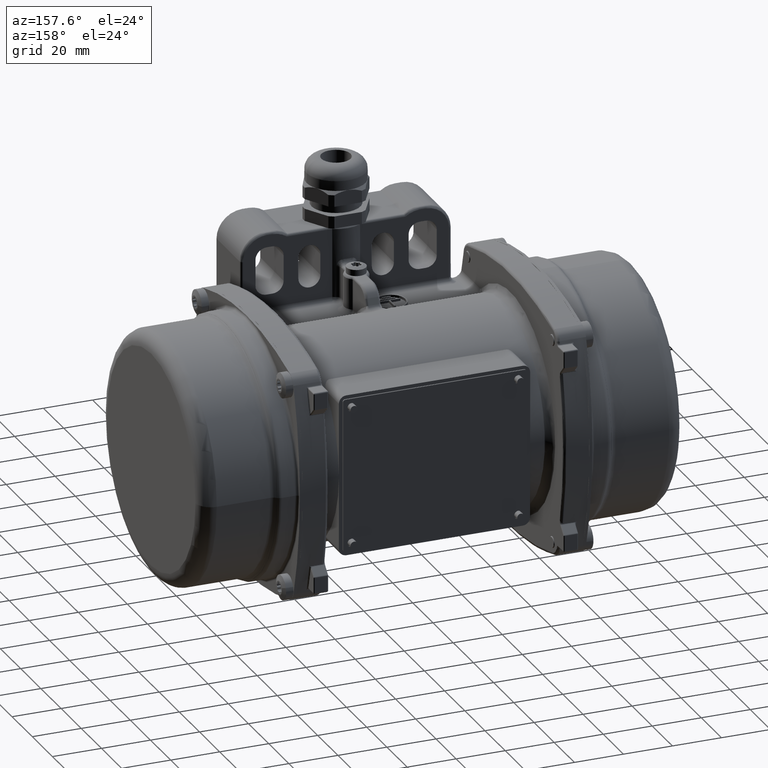
[diagram: clean part render]
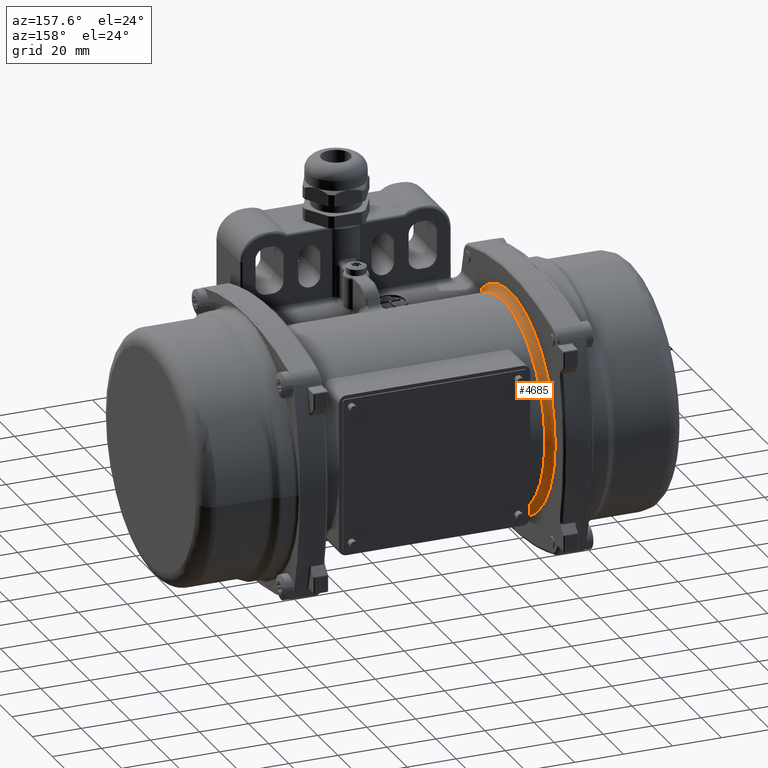
[diagram: same view with one face highlighted and labeled with its STEP entity id]
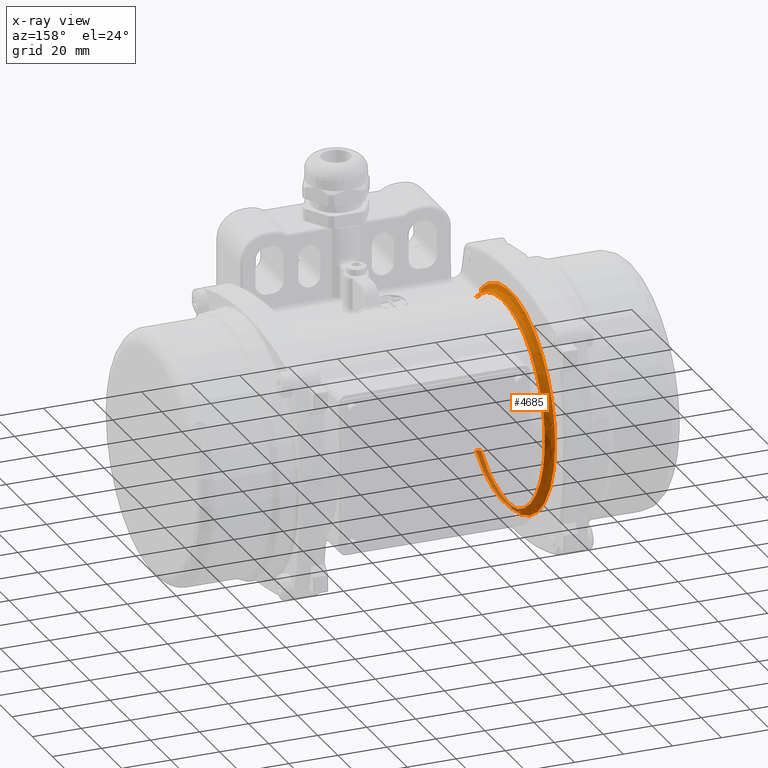
[diagram: x-ray of the same camera — body ghosted, the highlighted face saturated]
A machine part, auxiliary view. The second image highlights one B-rep face of the part: STEP entity #4685.
The next image is the same camera in x-ray: the body ghosted, the highlighted face saturated — about 10% of this face is hidden behind the body in this view.
In plain terms, the highlighted face is a freeform B-spline surface patch.
Its self-contained STEP definition (entity closure, byte-faithful):
#31 = CARTESIAN_POINT ( 'NONE',  ( -45.00000000000000000, -25.30489562417329800, -32.95098881248504300 ) ) ;
#205 = CARTESIAN_POINT ( 'NONE',  ( -48.00000000000000000, 33.90494397087753200, -28.82242480583859400 ) ) ;
#607 = CARTESIAN_POINT ( 'NONE',  ( -48.00000000000000700, 29.69462071091471200, -33.14341398478863700 ) ) ;
#774 = CARTESIAN_POINT ( 'NONE',  ( -45.00000000000000700, 37.09332074127581800, 19.02059786740895900 ) ) ;
#1013 = CARTESIAN_POINT ( 'NONE',  ( -48.00000000000000000, 33.66058254172472900, -29.10702316364404400 ) ) ;
#1422 = CARTESIAN_POINT ( 'NONE',  ( -48.00000000000000700, 41.72414561580497100, -15.53583702631850200 ) ) ;
#1842 = CARTESIAN_POINT ( 'NONE',  ( -47.99999999999999300, 44.02729068912286400, -6.470414382247309200 ) ) ;
#2007 = CARTESIAN_POINT ( 'NONE',  ( -45.00000000000000700, 24.35663043462383100, 33.82975230060072400 ) ) ;
#2133 = CARTESIAN_POINT ( 'NONE',  ( -45.00000000000000000, -26.80392614338795100, -31.68279569892475000 ) ) ;
#2267 = CARTESIAN_POINT ( 'NONE',  ( -48.00000000000000000, 13.72837854929255600, -42.32982394694637000 ) ) ;
#2505 = CARTESIAN_POINT ( 'NONE',  ( -48.00000000000000000, -17.96822218373139900, -40.44683618852395300 ) ) ;
#2552 = ORIENTED_EDGE ( 'NONE', *, *, #7175, .F. ) ;
#2678 = CARTESIAN_POINT ( 'NONE',  ( -47.99999999999999300, 13.34360313352341100, -42.45236046215974600 ) ) ;
#2927 = CARTESIAN_POINT ( 'NONE',  ( -48.00000000000000000, 12.75124827889002100, -42.38177272400649500 ) ) ;
#3091 = CARTESIAN_POINT ( 'NONE',  ( -48.00000000000001400, -19.56932794605518600, -39.97926960031512100 ) ) ;
#3319 = CARTESIAN_POINT ( 'NONE',  ( -45.39018064403220600, -26.80392614338795100, 31.68279569892475000 ) ) ;
#3337 = CARTESIAN_POINT ( 'NONE',  ( -48.00000000000000000, 29.38884290398224800, 33.61416490967715000 ) ) ;
#3490 = CARTESIAN_POINT ( 'NONE',  ( -47.99999999999999300, -23.82914068024895100, -37.58229910812337900 ) ) ;
#4127 = CARTESIAN_POINT ( 'NONE',  ( -48.00000000000000000, -12.16707724644929900, 42.96022084225484900 ) ) ;
#4518 = CARTESIAN_POINT ( 'NONE',  ( -48.00000000000000000, -26.89624999527479700, 35.02318467757180500 ) ) ;
#4685 = ADVANCED_FACE ( 'NONE', ( #5189 ), #85335, .F. ) ;
#4913 = CARTESIAN_POINT ( 'NONE',  ( -48.00000000000000000, -28.48955036663959800, 33.67523843305065200 ) ) ;
#4935 = CARTESIAN_POINT ( 'NONE',  ( -48.00000000000000000, 24.12022964226045100, 37.10826718415415100 ) ) ;
#5189 = FACE_OUTER_BOUND ( 'NONE', #92314, .T. ) ;
#5331 = CARTESIAN_POINT ( 'NONE',  ( -47.84388367165259800, 43.02900343115749800, -6.154179179074980700 ) ) ;
#5632 = CARTESIAN_POINT ( 'NONE',  ( -48.00000000000000700, 11.43189821955649600, 43.01277929005718900 ) ) ;
#5736 = CARTESIAN_POINT ( 'NONE',  ( -47.84388367165259800, 6.503809816493951100, 42.97754580431190200 ) ) ;
#6051 = CARTESIAN_POINT ( 'NONE',  ( -47.99999999999999300, -7.277767570765238500, 43.90234625501403100 ) ) ;
#6145 = CARTESIAN_POINT ( 'NONE',  ( -47.84388367165259800, -5.804152623211230400, -43.07760614952269400 ) ) ;
#6451 = CARTESIAN_POINT ( 'NONE',  ( -47.99999999999999300, -3.600345548064578500, 44.37827221229464000 ) ) ;
#6539 = CARTESIAN_POINT ( 'NONE',  ( -46.17908345202980100, 31.68859535467009900, 27.25394127705254700 ) ) ;
#6838 = CARTESIAN_POINT ( 'NONE',  ( -48.00000000000000000, -20.25266539705122100, 39.63009864552475400 ) ) ;
#6932 = CARTESIAN_POINT ( 'NONE',  ( -46.17908345202980100, 27.51067547783840100, 31.46596772489355200 ) ) ;
#7175 = EDGE_CURVE ( 'NONE', #40846, #105311, #55454, .T. ) ;
#7235 = CARTESIAN_POINT ( 'NONE',  ( -48.00000000000000000, -26.84059833373945400, 35.51786148692399100 ) ) ;
#7334 = CARTESIAN_POINT ( 'NONE',  ( -46.17908345202980100, 17.58738033927315000, -37.91607096723655000 ) ) ;
#7645 = CARTESIAN_POINT ( 'NONE',  ( -47.99999999999999300, 24.55686626549066900, 37.11088592282092700 ) ) ;
#7742 = CARTESIAN_POINT ( 'NONE',  ( -46.17908345202980100, 41.37542128030390400, -5.917677284255241000 ) ) ;
#8041 = CARTESIAN_POINT ( 'NONE',  ( -48.00000000000000700, 19.17021884003902700, 40.15914844638221800 ) ) ;
#8134 = CARTESIAN_POINT ( 'NONE',  ( -47.17623873441900200, -27.33597520657885100, 32.31168870813189600 ) ) ;
#8267 = CARTESIAN_POINT ( 'NONE',  ( -45.00000000000000000, 11.99680278224357900, 39.87419567176965500 ) ) ;
#8432 = CARTESIAN_POINT ( 'NONE',  ( -48.00000000000001400, 37.09700644358367300, 24.57781253577016000 ) ) ;
#8533 = CARTESIAN_POINT ( 'NONE',  ( -46.17908345202980100, -26.90475820446745200, 31.80198128293185200 ) ) ;
#8836 = CARTESIAN_POINT ( 'NONE',  ( -47.99999999999999300, 40.22256102351734300, 19.03680636298571500 ) ) ;
#9065 = CARTESIAN_POINT ( 'NONE',  ( -45.00000000000000000, -26.80392614338795100, -31.68279569892475000 ) ) ;
#9231 = CARTESIAN_POINT ( 'NONE',  ( -47.99999999999999300, 44.25864173379366700, -4.686893640855959800 ) ) ;
#9462 = CARTESIAN_POINT ( 'NONE',  ( -45.39018064403220600, 35.09605045809880200, 22.40852471530865100 ) ) ;
#9631 = CARTESIAN_POINT ( 'NONE',  ( -47.99999999999998600, 37.46405001452358600, -24.01509477260959700 ) ) ;
#10040 = CARTESIAN_POINT ( 'NONE',  ( -48.00000000000000700, 25.47855538790259200, -36.48570475155609900 ) ) ;
#10205 = CARTESIAN_POINT ( 'NONE',  ( -44.99999999999998600, 30.27445206728186400, 28.65580462794051500 ) ) ;
#10466 = CARTESIAN_POINT ( 'NONE',  ( -48.00000000000000000, 44.14179921423743700, -5.646968401907692200 ) ) ;
#10620 = CARTESIAN_POINT ( 'NONE',  ( -45.00000000000000000, 13.89718443282241000, 39.30096502236252600 ) ) ;
#10875 = CARTESIAN_POINT ( 'NONE',  ( -47.99999999999999300, 37.28781797872351700, -24.28723189910523000 ) ) ;
#11697 = CARTESIAN_POINT ( 'NONE',  ( -48.00000000000000700, 13.40683418920845900, -42.43243203035171300 ) ) ;
#11940 = CARTESIAN_POINT ( 'NONE',  ( -48.00000000000000000, -18.12716304103085100, 40.80461531397779900 ) ) ;
#12107 = CARTESIAN_POINT ( 'NONE',  ( -48.00000000000001400, -5.379793545953864600, -44.17514869920284300 ) ) ;
#12359 = CARTESIAN_POINT ( 'NONE',  ( -48.00000000000000000, 37.63311434663609800, 24.02841806822255000 ) ) ;
#12526 = CARTESIAN_POINT ( 'NONE',  ( -47.99999999999999300, -9.016740131287496900, -43.60079708898689400 ) ) ;
#12772 = CARTESIAN_POINT ( 'NONE',  ( -48.00000000000000000, 24.33358909086925000, 37.43651444973439600 ) ) ;
#12931 = CARTESIAN_POINT ( 'NONE',  ( -47.99999999999998600, -23.99229906454773300, -37.47826692736202900 ) ) ;
#13998 = CARTESIAN_POINT ( 'NONE',  ( -47.84388367165259800, 36.63597766406385100, -23.39175491939789700 ) ) ;
#14401 = CARTESIAN_POINT ( 'NONE',  ( -47.84388367165259800, 18.29026570718934900, 39.43139905917714600 ) ) ;
#14712 = CARTESIAN_POINT ( 'NONE',  ( -48.00000000000000000, -1.950095477652040700, 44.46079828364416600 ) ) ;
#14810 = CARTESIAN_POINT ( 'NONE',  ( -48.00000000000000000, 42.48404211972649600, 12.40625385611164200 ) ) ;
#15220 = CARTESIAN_POINT ( 'NONE',  ( -47.17623873441900200, -22.56097367086679700, -35.97781851636445100 ) ) ;
#15536 = CARTESIAN_POINT ( 'NONE',  ( -48.00000000000000700, 4.946499460986415500, 44.23039511711682100 ) ) ;
#15629 = CARTESIAN_POINT ( 'NONE',  ( -47.84388367165259800, 39.57879959540054700, 17.96907566466299900 ) ) ;
#15784 = B_SPLINE_CURVE_WITH_KNOTS ( 'NONE', 3,
 ( #27933, #57590, #56386, #47274, #74863, #113188, #103752 ),
 .UNSPECIFIED., .F., .F.,
 ( 4, 1, 1, 1, 4 ),
 ( 0.0000000000000000000, 1.170541932096763800, 2.341083864193534800, 3.511625796290294600, 4.682167728387069500 ),
 .UNSPECIFIED. ) ;
#15934 = CARTESIAN_POINT ( 'NONE',  ( -48.00000000000000000, 5.769832593288291500, 44.12527198643981300 ) ) ;
#16026 = CARTESIAN_POINT ( 'NONE',  ( -47.17623873441900200, 17.86926272480725000, 38.52377218982620400 ) ) ;
#16330 = CARTESIAN_POINT ( 'NONE',  ( -47.99999999999999300, -18.66915572164765900, 40.39447598000516100 ) ) ;
#16428 = CARTESIAN_POINT ( 'NONE',  ( -47.17623873441900200, 35.79269544465940100, 22.85332651480964800 ) ) ;
#16727 = CARTESIAN_POINT ( 'NONE',  ( -48.00000000000000000, 43.92262637708018500, 7.146501395637798700 ) ) ;
#16828 = CARTESIAN_POINT ( 'NONE',  ( -46.17908345202980100, 38.05780697776119600, 17.27853346249549900 ) ) ;
#17137 = CARTESIAN_POINT ( 'NONE',  ( -48.00000000000000700, 24.69346079459932500, 37.02004891059055300 ) ) ;
#17227 = CARTESIAN_POINT ( 'NONE',  ( -47.17623873441900200, 40.76381364796799300, 11.90391015136240000 ) ) ;
#17353 = CARTESIAN_POINT ( 'NONE',  ( -45.39018064403220600, 22.69312241058595000, 34.91270448683095400 ) ) ;
#17451 = B_SPLINE_CURVE_WITH_KNOTS ( 'NONE', 3,
 ( #95948, #95116, #86007, #19318, #66654, #28790, #47727, #39469, #114481, #114904, #58463, #113652, #49406, #57638, #38666, #30440, #105450, #57231, #115319, #30041, #774, #58879, #10205, #2007, #58058, #10620, #76121, #95525, #85601, #39082, #67069, #29195, #104598, #48147 ),
 .UNSPECIFIED., .F., .F.,
 ( 4, 2, 2, 2, 2, 2, 2, 2, 2, 2, 2, 2, 2, 2, 2, 2, 4 ),
 ( 0.0000000000000000000, 0.06250000000000005600, 0.1250000000000001100, 0.1875000000000001700, 0.2500000000000002200, 0.3125000000000002200, 0.3750000000000002200, 0.4375000000000002200, 0.5000000000000002200, 0.5625000000000002200, 0.6250000000000003300, 0.6875000000000002200, 0.7500000000000002200, 0.8125000000000001100, 0.8750000000000001100, 0.9375000000000000000, 1.000000000000000000 ),
 .UNSPECIFIED. ) ;
#17527 = CARTESIAN_POINT ( 'NONE',  ( -48.00000000000000000, 24.72177700285896100, 37.00114467157478500 ) ) ;
#17630 = CARTESIAN_POINT ( 'NONE',  ( -45.39018064403220600, 6.230433907962790800, -41.17106222588714100 ) ) ;
#17769 = CARTESIAN_POINT ( 'NONE',  ( -45.00000000000000000, 22.69312241058595000, -34.91270448683095400 ) ) ;
#17941 = CARTESIAN_POINT ( 'NONE',  ( -48.00000000000000000, 36.23776356202804300, 25.83628818108193000 ) ) ;
#18034 = CARTESIAN_POINT ( 'NONE',  ( -45.39018064403220600, -5.560185542162800600, -41.26691671506100100 ) ) ;
#18166 = CARTESIAN_POINT ( 'NONE',  ( -45.00000000000000000, 35.09605045809880200, 22.40852471530865100 ) ) ;
#18338 = CARTESIAN_POINT ( 'NONE',  ( -48.00000000000001400, 41.98108572943087300, 14.77658796955627500 ) ) ;
#18569 = CARTESIAN_POINT ( 'NONE',  ( -45.39018064403220600, 0.3385435463453349600, 41.63844785793940400 ) ) ;
#18744 = CARTESIAN_POINT ( 'NONE',  ( -47.99999999999999300, 19.35282388801032000, -40.07146982780253100 ) ) ;
#18984 = CARTESIAN_POINT ( 'NONE',  ( -45.00000000000000000, 41.22035692425134800, -5.895499363426509400 ) ) ;
#19158 = CARTESIAN_POINT ( 'NONE',  ( -47.99999999999999300, 33.78350480731565900, -28.96426576619710900 ) ) ;
#19318 = CARTESIAN_POINT ( 'NONE',  ( -45.00000000000000700, -13.25631805677157300, -39.52173602495921000 ) ) ;
#19562 = CARTESIAN_POINT ( 'NONE',  ( -48.00000000000000700, 24.85294081902833300, -36.91317211865714400 ) ) ;
#19980 = CARTESIAN_POINT ( 'NONE',  ( -47.99999999999999300, 29.58147587997975600, -33.24435521971155100 ) ) ;
#20383 = CARTESIAN_POINT ( 'NONE',  ( -48.00000000000000700, 25.11444183942701300, -36.73612733446296400 ) ) ;
#20808 = CARTESIAN_POINT ( 'NONE',  ( -48.00000000000000000, -28.74155935857265100, -33.97311827956989600 ) ) ;
#21445 = CARTESIAN_POINT ( 'NONE',  ( -48.00000000000000000, 6.680826720586589200, -44.14728359161395600 ) ) ;
#21614 = CARTESIAN_POINT ( 'NONE',  ( -48.00000000000001400, 10.63902709252508800, -43.23411585668240800 ) ) ;
#22022 = CARTESIAN_POINT ( 'NONE',  ( -48.00000000000000000, -7.413968463905565200, -43.89154936547429700 ) ) ;
#22175 = VERTEX_POINT ( 'NONE', #2133 ) ;
#22251 = CARTESIAN_POINT ( 'NONE',  ( -48.00000000000000000, -28.74155935857265100, 33.97311827956989600 ) ) ;
#23072 = CARTESIAN_POINT ( 'NONE',  ( -48.00000000000000000, 40.29955595574689700, 18.29630452726739900 ) ) ;
#23491 = CARTESIAN_POINT ( 'NONE',  ( -47.84388367165259800, 36.63597766406385100, 23.39175491939794700 ) ) ;
#23901 = CARTESIAN_POINT ( 'NONE',  ( -47.84388367165259800, 23.68884005209314800, -36.44458692862524900 ) ) ;
#24210 = CARTESIAN_POINT ( 'NONE',  ( -48.00000000000000700, 9.569802626616173300, 43.48328890388707900 ) ) ;
#24303 = CARTESIAN_POINT ( 'NONE',  ( -48.00000000000000000, 24.12022964226045100, -37.10826718415420100 ) ) ;
#24616 = CARTESIAN_POINT ( 'NONE',  ( -48.00000000000000700, -17.67566383969408500, 40.85275508085567300 ) ) ;
#24709 = CARTESIAN_POINT ( 'NONE',  ( -47.84388367165259800, 32.95504036097270300, -28.34315389269784900 ) ) ;
#25019 = CARTESIAN_POINT ( 'NONE',  ( -48.00000000000001400, 13.01521825841564400, 42.55418801044430000 ) ) ;
#25112 = CARTESIAN_POINT ( 'NONE',  ( -47.17623873441900200, -11.57205556581136100, 40.85928383919635100 ) ) ;
#25513 = CARTESIAN_POINT ( 'NONE',  ( -47.17623873441900200, -25.80718942766175100, 33.60505503528800400 ) ) ;
#25828 = CARTESIAN_POINT ( 'NONE',  ( -48.00000000000000000, 12.81796011595257500, 42.61435810623642300 ) ) ;
#25926 = CARTESIAN_POINT ( 'NONE',  ( -47.17623873441900200, 40.76381364796799300, -11.90391015136236100 ) ) ;
#26178 = ORIENTED_EDGE ( 'NONE', *, *, #112261, .F. ) ;
#26226 = CARTESIAN_POINT ( 'NONE',  ( -48.00000000000001400, 44.33563461634844300, 4.416426809092400600 ) ) ;
#26324 = CARTESIAN_POINT ( 'NONE',  ( -46.17908345202980100, 6.253871798703050500, 41.32594114320919900 ) ) ;
#26625 = CARTESIAN_POINT ( 'NONE',  ( -47.99999999999999300, 37.78566669724475700, 23.52808850593598700 ) ) ;
#26725 = CARTESIAN_POINT ( 'NONE',  ( -46.17908345202980100, 41.79646385236905100, 2.509104000000000200E-014 ) ) ;
#26854 = CARTESIAN_POINT ( 'NONE',  ( -45.39018064403220600, -5.560185542162800600, 41.26691671506105100 ) ) ;
#27031 = CARTESIAN_POINT ( 'NONE',  ( -48.00000000000001400, 26.81634020505497100, 35.53770100781073200 ) ) ;
#27114 = CARTESIAN_POINT ( 'NONE',  ( -45.39018064403220600, 37.91517618031755200, -17.21377799700444900 ) ) ;
#27253 = CARTESIAN_POINT ( 'NONE',  ( -45.00000000000000000, -22.12186203078275100, 35.27757041866069400 ) ) ;
#27425 = CARTESIAN_POINT ( 'NONE',  ( -48.00000000000000700, 35.21218081165746800, 27.24141911959838000 ) ) ;
#27518 = CARTESIAN_POINT ( 'NONE',  ( -45.39018064403220600, -25.30489562417329800, -32.95098881248504300 ) ) ;
#27650 = CARTESIAN_POINT ( 'NONE',  ( -45.00000000000000000, -16.90510710568045000, 38.05374237146244800 ) ) ;
#27821 = CARTESIAN_POINT ( 'NONE',  ( -47.99999999999998600, 42.52089973544476500, 13.12354755027209100 ) ) ;
#27933 = CARTESIAN_POINT ( 'NONE',  ( -48.00000000000000000, -28.74155935857265100, -33.97311827956989600 ) ) ;
#28230 = CARTESIAN_POINT ( 'NONE',  ( -48.00000000000000000, 36.67086169461434500, -25.22876943559607500 ) ) ;
#28619 = CARTESIAN_POINT ( 'NONE',  ( -48.00000000000000000, 42.57970381608493700, -12.93148223625525800 ) ) ;
#28790 = CARTESIAN_POINT ( 'NONE',  ( -45.00000000000000000, -1.646359311140513900, -41.65317620383187600 ) ) ;
#29034 = CARTESIAN_POINT ( 'NONE',  ( -48.00000000000000000, 43.84448757211435300, -7.688329924466662700 ) ) ;
#29195 = CARTESIAN_POINT ( 'NONE',  ( -45.00000000000000700, -20.44005371033399100, 36.33045266945497800 ) ) ;
#29453 = CARTESIAN_POINT ( 'NONE',  ( -48.00000000000000000, 29.55974631477830900, -33.26367932073331700 ) ) ;
#29872 = CARTESIAN_POINT ( 'NONE',  ( -48.00000000000000700, 19.41019853092331000, -40.04370649903452100 ) ) ;
#30041 = CARTESIAN_POINT ( 'NONE',  ( -45.00000000000000700, 38.73446887403809300, 15.40579462069445400 ) ) ;
#30278 = CARTESIAN_POINT ( 'NONE',  ( -48.00000000000000000, 15.07007501455762400, -41.87673256616831500 ) ) ;
#30440 = CARTESIAN_POINT ( 'NONE',  ( -45.00000000000000000, 40.93792770107159400, -7.860258417550873800 ) ) ;
#30515 = EDGE_CURVE ( 'NONE', #105311, #22175, #15784, .T. ) ;
#30519 = CARTESIAN_POINT ( 'NONE',  ( -48.00000000000000000, 33.85199143788655400, -29.11458133228610000 ) ) ;
#30692 = CARTESIAN_POINT ( 'NONE',  ( -48.00000000000000700, -25.66905240572079800, -36.40326689602712700 ) ) ;
#31102 = CARTESIAN_POINT ( 'NONE',  ( -48.00000000000001400, -0.8488556915824326800, -44.50561507650476000 ) ) ;
#31506 = CARTESIAN_POINT ( 'NONE',  ( -48.00000000000000700, -12.56696343877522700, -42.68871034461773900 ) ) ;
#31745 = CARTESIAN_POINT ( 'NONE',  ( -48.00000000000000000, -5.962126665692640200, 44.25006732096905200 ) ) ;
#31905 = CARTESIAN_POINT ( 'NONE',  ( -47.99999999999997900, -23.96415771268595700, -37.49626805855900400 ) ) ;
#32143 = CARTESIAN_POINT ( 'NONE',  ( -48.00000000000000000, 24.33358909086925000, -37.43651444973439600 ) ) ;
#32540 = CARTESIAN_POINT ( 'NONE',  ( -47.84388367165259800, -27.98001560519675100, 33.07295779468690000 ) ) ;
#32949 = CARTESIAN_POINT ( 'NONE',  ( -47.84388367165259800, -17.64686106408870400, 39.72344572559229900 ) ) ;
#33363 = CARTESIAN_POINT ( 'NONE',  ( -48.00000000000000000, 40.29955595574689700, -18.29630452726745200 ) ) ;
#33665 = CARTESIAN_POINT ( 'NONE',  ( -48.00000000000000700, -10.07741741861754500, 43.36792278329058100 ) ) ;
#33771 = CARTESIAN_POINT ( 'NONE',  ( -47.84388367165259800, -26.41521136361225100, -34.39679606069310600 ) ) ;
#34072 = CARTESIAN_POINT ( 'NONE',  ( -48.00000000000000000, -23.15566562111292000, 38.01467849368140900 ) ) ;
#34173 = CARTESIAN_POINT ( 'NONE',  ( -47.84388367165259800, -11.84469523654236100, -41.82193577504925500 ) ) ;
#34488 = CARTESIAN_POINT ( 'NONE',  ( -48.00000000000000000, -25.44613405480720300, 36.51258388362006700 ) ) ;
#34584 = CARTESIAN_POINT ( 'NONE',  ( -47.17623873441879600, -5.670553385032170500, -42.08605135457505500 ) ) ;
#34894 = CARTESIAN_POINT ( 'NONE',  ( -48.00000000000000000, -0.8484805414199896300, 44.49536839935412800 ) ) ;
#34987 = CARTESIAN_POINT ( 'NONE',  ( -47.17623873441879600, 42.46635821470840000, 2.220446000000000400E-014 ) ) ;
#35286 = CARTESIAN_POINT ( 'NONE',  ( -48.00000000000000000, 15.83391703285227900, 41.61235404231685200 ) ) ;
#35391 = CARTESIAN_POINT ( 'NONE',  ( -47.17623873441900200, 27.95160384134409500, 31.97028968042810200 ) ) ;
#35696 = CARTESIAN_POINT ( 'NONE',  ( -48.00000000000001400, 23.98039040289749500, 37.48751104800990000 ) ) ;
#35789 = CARTESIAN_POINT ( 'NONE',  ( -46.17908345202980100, 12.04193282567180000, 40.02419598560289400 ) ) ;
#35928 = CARTESIAN_POINT ( 'NONE',  ( -45.00000000000000000, -26.80392614338795100, 31.68279569892475000 ) ) ;
#36102 = CARTESIAN_POINT ( 'NONE',  ( -47.99999999999998600, 42.42128755031964000, 13.44307181976210000 ) ) ;
#36203 = CARTESIAN_POINT ( 'NONE',  ( -47.17623873441900200, 42.03856736732674900, -6.012523074675900900 ) ) ;
#36323 = CARTESIAN_POINT ( 'NONE',  ( -45.00000000000000000, 39.97041415519004200, 11.67222043857625900 ) ) ;
#36494 = CARTESIAN_POINT ( 'NONE',  ( -48.00000000000000000, 29.44150483890692600, 33.36837922280229700 ) ) ;
#36589 = CARTESIAN_POINT ( 'NONE',  ( -45.39018064403220600, 39.97041415519004200, -11.67222043857622000 ) ) ;
#36661 = CARTESIAN_POINT ( 'NONE',  ( -48.00000000000000000, -28.74155935857265100, -33.97311827956989600 ) ) ;
#36731 = CARTESIAN_POINT ( 'NONE',  ( -45.00000000000000000, -25.30489562417334800, 32.95098881248504300 ) ) ;
#36903 = CARTESIAN_POINT ( 'NONE',  ( -48.00000000000000700, 37.18268637304414900, 24.44787833542783800 ) ) ;
#36998 = CARTESIAN_POINT ( 'NONE',  ( -45.39018064403220600, 27.40757259584860300, -31.34804143262024600 ) ) ;
#37296 = CARTESIAN_POINT ( 'NONE',  ( -48.00000000000000700, 20.23794926300093900, 39.64566120147845400 ) ) ;
#37697 = CARTESIAN_POINT ( 'NONE',  ( -48.00000000000000700, 42.69790928042828400, -12.53681876895535700 ) ) ;
#38093 = CARTESIAN_POINT ( 'NONE',  ( -47.99999999999999300, 43.54176574749564600, -9.298994889983564600 ) ) ;
#38510 = CARTESIAN_POINT ( 'NONE',  ( -48.00000000000002100, 34.18611406305534900, -28.48981736829026800 ) ) ;
#38666 = CARTESIAN_POINT ( 'NONE',  ( -45.00000000000000000, 38.73446887403812200, -15.40579462069440800 ) ) ;
#38891 = ORIENTED_EDGE ( 'NONE', *, *, #97737, .F. ) ;
#38912 = CARTESIAN_POINT ( 'NONE',  ( -47.99999999999999300, 20.93179200392323800, -39.27593134593323800 ) ) ;
#39082 = CARTESIAN_POINT ( 'NONE',  ( -45.00000000000000000, -9.436648512232181900, 40.60353742847329500 ) ) ;
#39314 = CARTESIAN_POINT ( 'NONE',  ( -48.00000000000000700, 38.18488991352929700, -22.86135379042096400 ) ) ;
#39469 = CARTESIAN_POINT ( 'NONE',  ( -45.00000000000000000, 10.09560981719779900, -40.44473079732073000 ) ) ;
#39718 = CARTESIAN_POINT ( 'NONE',  ( -48.00000000000000700, -15.21956862315422900, -41.84008902831619300 ) ) ;
#39958 = CARTESIAN_POINT ( 'NONE',  ( -48.00000000000000000, 37.63311434663609800, -24.02841806822250000 ) ) ;
#40123 = CARTESIAN_POINT ( 'NONE',  ( -48.00000000000000000, 8.760768032110490800, -43.63526697471014200 ) ) ;
#40375 = CARTESIAN_POINT ( 'NONE',  ( -48.00000000000000000, -26.89624999527479700, -35.02318467757180500 ) ) ;
#40543 = CARTESIAN_POINT ( 'NONE',  ( -48.00000000000000700, -12.63383960008419000, -42.66896323341200800 ) ) ;
#40791 = CARTESIAN_POINT ( 'NONE',  ( -48.00000000000000000, -12.16707724644925800, -42.96022084225484900 ) ) ;
#40846 = VERTEX_POINT ( 'NONE', #80028 ) ;
#40959 = CARTESIAN_POINT ( 'NONE',  ( -48.00000000000000000, -20.93941714565852800, -39.28912003641941900 ) ) ;
#41356 = CARTESIAN_POINT ( 'NONE',  ( -48.00000000000000000, 7.139951727951225500, -43.92433926456222800 ) ) ;
#41602 = CARTESIAN_POINT ( 'NONE',  ( -48.00000000000000000, -23.72103277999589800, -37.82775623205785100 ) ) ;
#42016 = CARTESIAN_POINT ( 'NONE',  ( -48.00000000000000000, 6.622248534687580300, 43.76019560185999800 ) ) ;
#42417 = CARTESIAN_POINT ( 'NONE',  ( -48.00000000000000000, 44.25843388073185000, 1.199041000000000000E-014 ) ) ;
#42837 = CARTESIAN_POINT ( 'NONE',  ( -47.84388367165259800, 23.68884005209314800, 36.44458692862524900 ) ) ;
#43158 = CARTESIAN_POINT ( 'NONE',  ( -48.00000000000000000, -24.12120345078984600, 37.39543303265358500 ) ) ;
#43254 = CARTESIAN_POINT ( 'NONE',  ( -48.00000000000000000, -28.48955036663959800, 33.67523843305065200 ) ) ;
#43560 = CARTESIAN_POINT ( 'NONE',  ( -48.00000000000001400, -24.73631147556168800, 36.99285340135264700 ) ) ;
#43651 = CARTESIAN_POINT ( 'NONE',  ( -47.84388367165259800, -17.64686106408870400, -39.72344572559229900 ) ) ;
#43956 = CARTESIAN_POINT ( 'NONE',  ( -48.00000000000000000, -6.874987565880341700, 43.96593958844324800 ) ) ;
#44059 = CARTESIAN_POINT ( 'NONE',  ( -47.17623873441900200, 17.86926272480730300, -38.52377218982620400 ) ) ;
#44360 = CARTESIAN_POINT ( 'NONE',  ( -48.00000000000000000, 6.594463693242407700, 44.00952636689544300 ) ) ;
#44459 = CARTESIAN_POINT ( 'NONE',  ( -46.17908345203000000, -16.96870140090110000, -38.19689443264095300 ) ) ;
#44862 = CARTESIAN_POINT ( 'NONE',  ( -47.17623873441900200, 6.354105959074680700, -41.98829418551415000 ) ) ;
#45173 = CARTESIAN_POINT ( 'NONE',  ( -47.99999999999999300, 44.43839438389509400, -2.762829624022559800 ) ) ;
#45259 = CARTESIAN_POINT ( 'NONE',  ( -46.17908345202980100, -5.581102066301899500, 41.42215622156150100 ) ) ;
#45385 = CARTESIAN_POINT ( 'NONE',  ( -45.39018064403220600, -16.90510710568045000, 38.05374237146244800 ) ) ;
#45556 = CARTESIAN_POINT ( 'NONE',  ( -48.00000000000000700, 28.19455132685978800, 34.43500697313121600 ) ) ;
#45647 = CARTESIAN_POINT ( 'NONE',  ( -46.17908345202980100, -5.581102066301899500, -41.42215622156150100 ) ) ;
#45777 = CARTESIAN_POINT ( 'NONE',  ( -45.00000000000000000, 6.230433907962790800, -41.17106222588714100 ) ) ;
#45952 = CARTESIAN_POINT ( 'NONE',  ( -48.00000000000000700, 32.48844576769697300, 30.41656623129053800 ) ) ;
#46045 = CARTESIAN_POINT ( 'NONE',  ( -45.39018064403220600, 41.63982153787430500, 2.686739999999999800E-014 ) ) ;
#46187 = CARTESIAN_POINT ( 'NONE',  ( -45.00000000000000000, 0.3385435463453349600, 41.63844785793940400 ) ) ;
#46352 = CARTESIAN_POINT ( 'NONE',  ( -47.99999999999999300, 40.05574475210348600, 19.38600311814752400 ) ) ;
#46450 = CARTESIAN_POINT ( 'NONE',  ( -45.39018064403220600, 17.52146739572910100, -37.77397135962780100 ) ) ;
#46580 = CARTESIAN_POINT ( 'NONE',  ( -45.00000000000000000, 17.52146739572910100, -37.77397135962780100 ) ) ;
#46755 = CARTESIAN_POINT ( 'NONE',  ( -47.99999999999999300, 29.37043215279769400, 33.43104350235300600 ) ) ;
#46986 = CARTESIAN_POINT ( 'NONE',  ( -45.00000000000000000, 37.91517618031750900, 17.21377799700444900 ) ) ;
#47154 = CARTESIAN_POINT ( 'NONE',  ( -48.00000000000000000, 40.64301062609001700, -18.12521582928075900 ) ) ;
#47274 = CARTESIAN_POINT ( 'NONE',  ( -47.17623873441900200, -27.33597520657885100, -32.31168870813189600 ) ) ;
#47554 = CARTESIAN_POINT ( 'NONE',  ( -48.00000000000000000, 30.78679554429531300, -32.13782520162987300 ) ) ;
#47727 = CARTESIAN_POINT ( 'NONE',  ( -44.99999999999998600, 2.323417502948882200, -41.62090001376515900 ) ) ;
#47983 = CARTESIAN_POINT ( 'NONE',  ( -48.00000000000000000, 28.78025304322762800, -33.95540253027878200 ) ) ;
#48147 = CARTESIAN_POINT ( 'NONE',  ( -45.00000000000000000, -26.80392614338795100, 31.68279569892475000 ) ) ;
#48402 = CARTESIAN_POINT ( 'NONE',  ( -48.00000000000000000, 39.09756501484984200, -21.29605964634884800 ) ) ;
#48826 = CARTESIAN_POINT ( 'NONE',  ( -48.00000000000000000, 43.08536769871094700, -11.15496477422936800 ) ) ;
#49232 = CARTESIAN_POINT ( 'NONE',  ( -48.00000000000001400, 14.17719446061302700, -42.18278221289882200 ) ) ;
#49406 = CARTESIAN_POINT ( 'NONE',  ( -45.00000000000000000, 32.86308350020744500, -25.64596127477459900 ) ) ;
#49482 = CARTESIAN_POINT ( 'NONE',  ( -48.00000000000000000, -28.48955036663959800, -33.67523843305065200 ) ) ;
#49652 = CARTESIAN_POINT ( 'NONE',  ( -48.00000000000000000, -27.24354043531275900, -35.24039683410331500 ) ) ;
#49888 = CARTESIAN_POINT ( 'NONE',  ( -48.00000000000000000, 0.3598336065884940000, -44.25697381389375100 ) ) ;
#50053 = CARTESIAN_POINT ( 'NONE',  ( -48.00000000000000000, -4.421392015203014800, -44.28592125962509100 ) ) ;
#50298 = CARTESIAN_POINT ( 'NONE',  ( -48.00000000000000000, -5.962126665692679200, -44.25006732096905200 ) ) ;
#50454 = CARTESIAN_POINT ( 'NONE',  ( -48.00000000000000000, -2.501016375068455800, -44.45377718635674600 ) ) ;
#50854 = CARTESIAN_POINT ( 'NONE',  ( -48.00000000000000000, 0.8073879389126175100, -44.49609388766671700 ) ) ;
#51507 = CARTESIAN_POINT ( 'NONE',  ( -47.84388367165259800, 39.57879959540049700, -17.96907566466299900 ) ) ;
#51932 = CARTESIAN_POINT ( 'NONE',  ( -48.00000000000000000, -5.909850116878669900, 43.86207811274955000 ) ) ;
#52328 = CARTESIAN_POINT ( 'NONE',  ( -48.00000000000000000, 43.81259030643955300, -6.266250889975109900 ) ) ;
#52635 = CARTESIAN_POINT ( 'NONE',  ( -48.00000000000000000, -19.04524923324537500, 40.21887024039620700 ) ) ;
#52734 = CARTESIAN_POINT ( 'NONE',  ( -47.84388367165259800, 6.503809816493959900, -42.97754580431190200 ) ) ;
#53151 = CARTESIAN_POINT ( 'NONE',  ( -47.84388367165259800, 41.72421628927215000, 12.18436837467647900 ) ) ;
#53460 = CARTESIAN_POINT ( 'NONE',  ( -48.00000000000000700, 13.21354363118876000, 42.49302001056876300 ) ) ;
#53557 = CARTESIAN_POINT ( 'NONE',  ( -46.17908345202980100, 40.12077642748960200, -11.71612945540830000 ) ) ;
#53856 = CARTESIAN_POINT ( 'NONE',  ( -48.00000000000001400, 18.86520890076668500, 40.30367572809612400 ) ) ;
#53962 = CARTESIAN_POINT ( 'NONE',  ( -47.17623873441900200, 32.19648548273275400, -27.69075482370835300 ) ) ;
#54265 = CARTESIAN_POINT ( 'NONE',  ( -47.99999999999999300, -24.37825257599405800, 37.22871524006504300 ) ) ;
#54369 = CARTESIAN_POINT ( 'NONE',  ( -46.17908345202980100, -22.20508091937190200, -35.41027896725770300 ) ) ;
#54674 = CARTESIAN_POINT ( 'NONE',  ( -48.00000000000000000, 24.36520833657880700, 37.23730877106926600 ) ) ;
#54771 = CARTESIAN_POINT ( 'NONE',  ( -46.17908345202980100, -11.38950977874340100, 40.21474060441485000 ) ) ;
#54910 = CARTESIAN_POINT ( 'NONE',  ( -45.00000000000000000, -11.34682484781220100, -40.06402617873204300 ) ) ;
#55084 = CARTESIAN_POINT ( 'NONE',  ( -47.99999999999999300, 43.85613913794278300, 7.551336716882016000 ) ) ;
#55173 = CARTESIAN_POINT ( 'NONE',  ( -46.17908345202980100, -25.40008857342775200, -33.07494513510720700 ) ) ;
#55317 = CARTESIAN_POINT ( 'NONE',  ( -45.39018064403220600, 37.91517618031750900, 17.21377799700444900 ) ) ;
#55454 = B_SPLINE_CURVE_WITH_KNOTS ( 'NONE', 3,
 ( #80600, #100005, #7235, #34488, #43560, #54265, #72756, #43158, #63298, #110702, #34072, #109099, #6838, #71517, #52635, #90092, #119369, #118964, #16330, #24616, #62504, #120167, #63712, #81024, #99608, #82228, #100424, #90503, #33665, #91308, #6051, #43956, #118557, #71919, #101229, #6451, #14712, #34894, #100824, #62106, #91715, #15536, #15934, #81829, #44360, #109906, #24210, #5632, #81430, #25828, #25019, #90912, #53460, #62905, #35286, #72349, #110306, #53856, #119760, #8041, #73964, #37296, #65692, #121728, #35696, #54674, #7645, #122119, #17137, #17527, #64117, #27031, #45556, #92914, #83446, #46755, #36494, #83048, #83847, #103232, #102436, #45952, #55876, #55477, #111880, #112287, #120555, #101632, #27425, #17941, #121332, #64893, #8432, #102821, #36903, #74348, #26625, #92512, #73556, #93308, #46352, #65289, #111096, #8836, #112674, #74750, #18338, #84248, #36102, #120948, #27821, #73156, #56271, #93714, #102034, #55084, #16727, #82646, #92116, #26226, #111487, #64494, #45173, #9231, #10466, #75146, #94540, #1842, #29034, #38093, #48826, #67315, #37697, #57882, #105279, #28619, #103630, #1422, #66085, #47154, #84633, #113076, #94120, #113902, #104042, #48402, #39314, #114730, #9631, #56662, #10875, #94937, #85038, #28230, #85844, #57067, #38510, #205, #19158, #95777, #1013, #104438, #95363, #47554, #75552, #113481, #607, #76371, #19980, #29453, #47983, #58307, #66489, #10040, #20383, #75964, #19562, #85445, #57477, #86258, #66902, #38912, #104861, #114327, #76802, #29872, #18744, #60328, #116386, #30278, #49232, #2267, #116791, #11697, #2678, #58710, #21614, #40123, #87493, #78036, #41356, #115564, #69346, #68551, #106537, #50854, #31102, #50454, #50053, #12107, #106938, #115160, #96188, #22022, #12526, #97013, #115978, #59540, #97424, #31506, #40543, #77214, #39718, #68145, #78444, #86665, #68944, #105695, #87909, #107312, #3091, #40959, #59940, #87080, #59142, #3490, #67731, #31905, #12931, #30692, #49652, #20808 ),
 .UNSPECIFIED., .F., .F.,
 ( 4, 1, 1, 1, 1, 1, 2, 2, 1, 1, 1, 1, 1, 2, 2, 1, 1, 1, 1, 2, 2, 1, 1, 1, 2, 2, 1, 2, 2, 1, 1, 2, 2, 1, 1, 1, 1, 2, 2, 1, 1, 1, 1, 2, 2, 1, 1, 1, 1, 1, 2, 2, 1, 1, 1, 1, 1, 2, 2, 1, 1, 1, 1, 2, 2, 1, 1, 1, 1, 1, 2, 2, 1, 1, 1, 1, 2, 2, 1, 1, 1, 1, 2, 2, 1, 1, 1, 2, 2, 2, 1, 1, 1, 2, 2, 1, 1, 1, 1, 2, 2, 1, 1, 1, 1, 2, 2, 1, 1, 1, 1, 1, 2, 2, 1, 1, 1, 1, 2, 2, 1, 1, 1, 1, 1, 2, 2, 1, 1, 1, 1, 1, 2, 2, 1, 1, 1, 1, 2, 2, 1, 1, 1, 1, 2, 2, 1, 1, 2, 2, 1, 2, 2, 1, 1, 1, 2, 2, 1, 1, 1, 1, 2, 2, 1, 1, 1, 1, 1, 2, 2, 1, 1, 1, 1, 1, 2, 2, 4 ),
 ( 0.0000000000000000000, 0.01562499999999863700, 0.02343749999999795300, 0.02734374999999763400, 0.02929687499999745000, 0.03027343749999730800, 0.03076171874999726300, 0.03124999999999722100, 0.04687499999999710000, 0.05468749999999701600, 0.05859374999999695400, 0.06054687499999692600, 0.06152343749999692600, 0.06201171874999692600, 0.06249999999999693300, 0.07812499999999665500, 0.08593749999999653100, 0.08984374999999647500, 0.09179687499999647500, 0.09277343749999646100, 0.09374999999999643300, 0.1093749999999960700, 0.1171874999999959100, 0.1210937499999958200, 0.1230468749999957700, 0.1249999999999957300, 0.1406249999999954200, 0.1484374999999952500, 0.1562499999999951200, 0.1718749999999948100, 0.1796874999999946400, 0.1835937499999945900, 0.1874999999999945000, 0.2031249999999942500, 0.2109374999999941700, 0.2148437499999941400, 0.2167968749999940600, 0.2177734374999940600, 0.2187499999999940600, 0.2343749999999937800, 0.2421874999999937000, 0.2460937499999936400, 0.2480468749999936400, 0.2490234374999936200, 0.2499999999999936200, 0.2656249999999932300, 0.2734374999999930600, 0.2773437499999930100, 0.2792968749999929500, 0.2802734374999928900, 0.2807617187499929500, 0.2812499999999929500, 0.2968749999999926700, 0.3046874999999925600, 0.3085937499999925100, 0.3105468749999925100, 0.3115234374999925100, 0.3120117187499925600, 0.3124999999999925600, 0.3281249999999943900, 0.3359374999999953400, 0.3398437499999957800, 0.3417968749999960000, 0.3427734374999960600, 0.3437499999999961700, 0.3593749999999972200, 0.3671874999999977800, 0.3710937499999980600, 0.3730468749999981700, 0.3740234374999982200, 0.3745117187499982200, 0.3749999999999982200, 0.3906249999999996100, 0.3984375000000003300, 0.4023437500000006700, 0.4042968750000007800, 0.4052734375000008900, 0.4062500000000009400, 0.4218750000000018300, 0.4296875000000022800, 0.4335937500000024400, 0.4355468750000025000, 0.4365234375000026100, 0.4375000000000026600, 0.4531250000000040000, 0.4609375000000046100, 0.4648437500000049400, 0.4667968750000051100, 0.4687500000000052700, 0.5000000000000076600, 0.5156250000000088800, 0.5234375000000094400, 0.5273437500000097700, 0.5292968750000098800, 0.5312500000000099900, 0.5468750000000113200, 0.5546875000000119900, 0.5585937500000123200, 0.5605468750000124300, 0.5615234375000126600, 0.5625000000000127700, 0.5781250000000138800, 0.5859375000000144300, 0.5898437500000147700, 0.5917968750000149900, 0.5927734375000151000, 0.5937500000000152100, 0.6093750000000172100, 0.6171875000000183200, 0.6210937500000188700, 0.6230468750000191000, 0.6240234375000193200, 0.6245117187500193200, 0.6250000000000194300, 0.6406250000000189800, 0.6484375000000188700, 0.6523437500000187600, 0.6542968750000187600, 0.6552734375000186500, 0.6562500000000185400, 0.6718750000000186500, 0.6796875000000187600, 0.6835937500000187600, 0.6855468750000187600, 0.6865234375000187600, 0.6870117187500187600, 0.6875000000000187600, 0.7031250000000184300, 0.7109375000000182100, 0.7148437500000181000, 0.7167968750000181000, 0.7177734375000179900, 0.7182617187500178700, 0.7187500000000178700, 0.7343750000000165400, 0.7421875000000158800, 0.7460937500000155400, 0.7480468750000153200, 0.7490234375000152100, 0.7500000000000151000, 0.7656250000000137700, 0.7734375000000131000, 0.7773437500000127700, 0.7792968750000125500, 0.7802734375000125500, 0.7812500000000124300, 0.7968750000000111000, 0.8046875000000104400, 0.8085937500000099900, 0.8125000000000096600, 0.8281250000000083300, 0.8359375000000076600, 0.8437500000000069900, 0.8593750000000056600, 0.8671875000000048800, 0.8710937500000045500, 0.8730468750000044400, 0.8750000000000042200, 0.8906250000000028900, 0.8984375000000022200, 0.9023437500000018900, 0.9042968750000016700, 0.9052734375000015500, 0.9062500000000015500, 0.9218749999999998900, 0.9296874999999991100, 0.9335937499999986700, 0.9355468749999985600, 0.9365234374999984500, 0.9370117187499984500, 0.9374999999999983300, 0.9531249999999984500, 0.9609374999999984500, 0.9648437499999984500, 0.9667968749999984500, 0.9677734374999984500, 0.9682617187499985600, 0.9687499999999986700, 1.000000000000000000 ),
 .UNSPECIFIED. ) ;
#55477 = CARTESIAN_POINT ( 'NONE',  ( -48.00000000000000000, 33.34143946516311300, 29.47243421065128600 ) ) ;
#55573 = CARTESIAN_POINT ( 'NONE',  ( -45.39018064403220600, -16.90510710568045000, -38.05374237146244800 ) ) ;
#55678 = ORIENTED_EDGE ( 'NONE', *, *, #30515, .F. ) ;
#55703 = CARTESIAN_POINT ( 'NONE',  ( -45.00000000000000000, 0.3385435463453920200, -41.63844785793940400 ) ) ;
#55876 = CARTESIAN_POINT ( 'NONE',  ( -48.00000000000000000, 33.05956527957256000, 29.78958732886447800 ) ) ;
#56271 = CARTESIAN_POINT ( 'NONE',  ( -48.00000000000000700, 42.87986204503457100, 11.94851500259426300 ) ) ;
#56386 = CARTESIAN_POINT ( 'NONE',  ( -47.84388367165259800, -27.98001560519675100, -33.07295779468690000 ) ) ;
#56503 = CARTESIAN_POINT ( 'NONE',  ( -45.00000000000000000, 37.91517618031755200, -17.21377799700444900 ) ) ;
#56662 = CARTESIAN_POINT ( 'NONE',  ( -47.99999999999999300, 37.34088223360466000, -24.20569913415223300 ) ) ;
#57067 = CARTESIAN_POINT ( 'NONE',  ( -48.00000000000001400, 34.73970242287856500, -27.81802170634650300 ) ) ;
#57231 = CARTESIAN_POINT ( 'NONE',  ( -45.00000000000001400, 41.49999999999999300, 3.930341823409942300 ) ) ;
#57477 = CARTESIAN_POINT ( 'NONE',  ( -47.99999999999999300, 24.77528653660166200, -36.96533808519182400 ) ) ;
#57590 = CARTESIAN_POINT ( 'NONE',  ( -48.00000000000000000, -28.48955036663959800, -33.67523843305065200 ) ) ;
#57638 = CARTESIAN_POINT ( 'NONE',  ( -45.00000000000000000, 37.09332074127581800, -19.02059786740895600 ) ) ;
#57882 = CARTESIAN_POINT ( 'NONE',  ( -47.99999999999997900, 42.63933237198118300, -12.73350338116918600 ) ) ;
#58058 = CARTESIAN_POINT ( 'NONE',  ( -45.00000000000000000, 21.02808049242617000, 35.99329684334141900 ) ) ;
#58307 = CARTESIAN_POINT ( 'NONE',  ( -48.00000000000000000, 27.61483612022378500, -34.92084161847865400 ) ) ;
#58463 = CARTESIAN_POINT ( 'NONE',  ( -45.00000000000000700, 24.35663043462386700, -33.82975230060072400 ) ) ;
#58710 = CARTESIAN_POINT ( 'NONE',  ( -48.00000000000000700, 12.22799085320546600, -42.80114083673966300 ) ) ;
#58879 = CARTESIAN_POINT ( 'NONE',  ( -44.99999999999999300, 32.86308350020744500, 25.64596127477459200 ) ) ;
#58961 = CARTESIAN_POINT ( 'NONE',  ( -48.00000000000000000, -23.51304428904740000, -37.49607851770009900 ) ) ;
#59142 = CARTESIAN_POINT ( 'NONE',  ( -48.00000000000000000, -23.63972438493987500, -37.70202192829327700 ) ) ;
#59379 = CARTESIAN_POINT ( 'NONE',  ( -48.00000000000000000, 44.64992911892544900, 9.325872999999999700E-015 ) ) ;
#59540 = CARTESIAN_POINT ( 'NONE',  ( -48.00000000000000000, -12.24054527244835300, -42.78378106363502600 ) ) ;
#59782 = CARTESIAN_POINT ( 'NONE',  ( -48.00000000000000000, 12.86404153758650000, -42.75666764804214600 ) ) ;
#59940 = CARTESIAN_POINT ( 'NONE',  ( -47.99999999999998600, -22.49353079209456000, -38.40255457446228600 ) ) ;
#60170 = CARTESIAN_POINT ( 'NONE',  ( -48.00000000000000000, 40.65603228973805000, 18.45814749076380000 ) ) ;
#60328 = CARTESIAN_POINT ( 'NONE',  ( -48.00000000000000700, 18.31861323354796400, -40.56903132637700800 ) ) ;
#60579 = CARTESIAN_POINT ( 'NONE',  ( -48.00000000000000000, 6.680826720586599900, 44.14728359161395600 ) ) ;
#60971 = CARTESIAN_POINT ( 'NONE',  ( -48.00000000000000000, 29.13115846237235100, -33.31943240376560300 ) ) ;
#61381 = CARTESIAN_POINT ( 'NONE',  ( -47.84388367165259800, 43.46687310637649700, 1.643129999999999900E-014 ) ) ;
#61791 = CARTESIAN_POINT ( 'NONE',  ( -47.84388367165259800, -5.804152623211200200, 43.07760614952274400 ) ) ;
#62106 = CARTESIAN_POINT ( 'NONE',  ( -48.00000000000000000, 1.363581816631462600, 44.49292165168680000 ) ) ;
#62197 = CARTESIAN_POINT ( 'NONE',  ( -47.84388367165259800, 43.02900343115754800, 6.154179179074990500 ) ) ;
#62504 = CARTESIAN_POINT ( 'NONE',  ( -48.00000000000000700, -16.21041706027012100, 41.46625904175467500 ) ) ;
#62599 = CARTESIAN_POINT ( 'NONE',  ( -48.00000000000000000, 12.75124827889002100, 42.38177272400649500 ) ) ;
#62905 = CARTESIAN_POINT ( 'NONE',  ( -48.00000000000000000, 14.30894289055989600, 42.15058806219730800 ) ) ;
#63000 = CARTESIAN_POINT ( 'NONE',  ( -46.17908345202980100, 35.22807615778585000, 22.49282198283240300 ) ) ;
#63298 = CARTESIAN_POINT ( 'NONE',  ( -48.00000000000000700, -24.06967746395342200, 37.42861890007036200 ) ) ;
#63397 = CARTESIAN_POINT ( 'NONE',  ( -47.17623873441900200, 23.14357338015060300, 35.60571011654020200 ) ) ;
#63712 = CARTESIAN_POINT ( 'NONE',  ( -48.00000000000000700, -13.58447168117639100, 42.37732176797410900 ) ) ;
#63809 = CARTESIAN_POINT ( 'NONE',  ( -46.17908345202980100, 12.04193282567182200, -40.02419598560289400 ) ) ;
#64117 = CARTESIAN_POINT ( 'NONE',  ( -48.00000000000000700, 25.58791148935996800, 36.42157435538689500 ) ) ;
#64209 = CARTESIAN_POINT ( 'NONE',  ( -47.17623873441900200, 0.3452635236993569800, 42.46495726768139900 ) ) ;
#64331 = CARTESIAN_POINT ( 'NONE',  ( -45.39018064403220600, -11.34682484781230000, 40.06402617873204300 ) ) ;
#64494 = CARTESIAN_POINT ( 'NONE',  ( -47.99999999999999300, 44.50001255996310300, -1.106921332914148100 ) ) ;
#64590 = CARTESIAN_POINT ( 'NONE',  ( -47.17623873441900200, 12.23493534713104000, -40.66568525949515600 ) ) ;
#64723 = CARTESIAN_POINT ( 'NONE',  ( -45.00000000000000000, 17.52146739572905100, 37.77397135962785100 ) ) ;
#64893 = CARTESIAN_POINT ( 'NONE',  ( -48.00000000000000700, 36.97643700479108000, 24.75925111790669300 ) ) ;
#64982 = CARTESIAN_POINT ( 'NONE',  ( -46.17908345202980100, -25.40008857342775200, 33.07494513510715700 ) ) ;
#65115 = CARTESIAN_POINT ( 'NONE',  ( -45.00000000000000000, 27.40757259584860300, 31.34804143262024600 ) ) ;
#65289 = CARTESIAN_POINT ( 'NONE',  ( -48.00000000000000700, 40.13984203661798500, 19.21060466234050100 ) ) ;
#65692 = CARTESIAN_POINT ( 'NONE',  ( -48.00000000000000000, 21.62942467679322100, 38.91470896208514300 ) ) ;
#65914 = CARTESIAN_POINT ( 'NONE',  ( -45.00000000000000000, -11.34682484781230000, 40.06402617873204300 ) ) ;
#66085 = CARTESIAN_POINT ( 'NONE',  ( -48.00000000000000700, 41.01915062766930500, -17.26813344944117300 ) ) ;
#66489 = CARTESIAN_POINT ( 'NONE',  ( -48.00000000000000700, 26.19986811934910200, -35.97595563779432100 ) ) ;
#66654 = CARTESIAN_POINT ( 'NONE',  ( -44.99999999999998600, -9.436648512232162400, -40.60353742847330200 ) ) ;
#66902 = CARTESIAN_POINT ( 'NONE',  ( -48.00000000000000000, 22.53928914803978100, -38.39488203539238500 ) ) ;
#67069 = CARTESIAN_POINT ( 'NONE',  ( -44.99999999999998600, -13.25631805677162100, 39.52173602495916800 ) ) ;
#67315 = CARTESIAN_POINT ( 'NONE',  ( -48.00000000000001400, 42.83136302763626400, -12.07716490580461300 ) ) ;
#67731 = CARTESIAN_POINT ( 'NONE',  ( -48.00000000000000000, -23.91017068710094100, -37.53071681363955000 ) ) ;
#68145 = CARTESIAN_POINT ( 'NONE',  ( -48.00000000000000000, -16.94093071119067400, -41.15524583000866000 ) ) ;
#68551 = CARTESIAN_POINT ( 'NONE',  ( -48.00000000000000000, 2.468281305589500100, -44.43506992685085800 ) ) ;
#68786 = CARTESIAN_POINT ( 'NONE',  ( -48.00000000000000000, 0.3630165737920060300, -44.64845613682659600 ) ) ;
#68944 = CARTESIAN_POINT ( 'NONE',  ( -48.00000000000000000, -18.42805610322774300, -40.50511633107820600 ) ) ;
#69161 = CARTESIAN_POINT ( 'NONE',  ( -46.17908345202980100, -26.90475820446745200, 31.80198128293185200 ) ) ;
#69346 = CARTESIAN_POINT ( 'NONE',  ( -48.00000000000000700, 4.123552364530390900, -44.33289745303162000 ) ) ;
#69522 = CARTESIAN_POINT ( 'NONE',  ( -45.00000000000000000, -26.80392614338795100, 31.68279569892475000 ) ) ;
#69590 = CARTESIAN_POINT ( 'NONE',  ( -48.00000000000000000, 18.78807949662515100, -40.50461989164909900 ) ) ;
#70000 = CARTESIAN_POINT ( 'NONE',  ( -48.00000000000000000, 44.20014176214905200, -6.321680040300740300 ) ) ;
#70398 = CARTESIAN_POINT ( 'NONE',  ( -47.84388367165259800, 12.52319258245858100, -41.62377597865459900 ) ) ;
#70814 = CARTESIAN_POINT ( 'NONE',  ( -48.00000000000000000, 43.81259030643955300, 6.266250889975109900 ) ) ;
#71214 = CARTESIAN_POINT ( 'NONE',  ( -48.00000000000000000, 0.3598336065884680200, 44.25697381389375100 ) ) ;
#71517 = CARTESIAN_POINT ( 'NONE',  ( -48.00000000000000000, -19.44958492364752100, 40.02599514870633600 ) ) ;
#71611 = CARTESIAN_POINT ( 'NONE',  ( -47.17623873441900200, -25.80718942766169700, -33.60505503528800400 ) ) ;
#71919 = CARTESIAN_POINT ( 'NONE',  ( -48.00000000000000000, -6.473619917221644600, 44.02682302738711700 ) ) ;
#72024 = CARTESIAN_POINT ( 'NONE',  ( -47.84388367165259800, 0.3533979932308820000, -43.46543915279040200 ) ) ;
#72349 = CARTESIAN_POINT ( 'NONE',  ( -48.00000000000001400, 17.57547775805279100, 40.88851316070098800 ) ) ;
#72452 = CARTESIAN_POINT ( 'NONE',  ( -47.17623873441900200, 35.79269544465945100, -22.85332651480960200 ) ) ;
#72756 = CARTESIAN_POINT ( 'NONE',  ( -48.00000000000000700, -24.19843622372404500, 37.34557792938279200 ) ) ;
#72850 = CARTESIAN_POINT ( 'NONE',  ( -46.17908345202980100, 22.77849028888660100, 35.04404046844925300 ) ) ;
#73156 = CARTESIAN_POINT ( 'NONE',  ( -47.99999999999999300, 42.54017287629861200, 13.06094559041619400 ) ) ;
#73250 = CARTESIAN_POINT ( 'NONE',  ( -46.17908345202980100, 38.05780697776124600, -17.27853346249549900 ) ) ;
#73556 = CARTESIAN_POINT ( 'NONE',  ( -47.99999999999998600, 39.44894503468622600, 20.60359190966896400 ) ) ;
#73649 = CARTESIAN_POINT ( 'NONE',  ( -46.17908345202980100, -16.96870140090110000, 38.19689443264095300 ) ) ;
#73787 = CARTESIAN_POINT ( 'NONE',  ( -45.39018064403220600, 27.40757259584860300, 31.34804143262024600 ) ) ;
#73964 = CARTESIAN_POINT ( 'NONE',  ( -48.00000000000000000, 19.23286538616950400, 40.12918046060882200 ) ) ;
#74061 = CARTESIAN_POINT ( 'NONE',  ( -46.17908345202980100, 35.22807615778585000, -22.49282198283235000 ) ) ;
#74183 = CARTESIAN_POINT ( 'NONE',  ( -45.00000000000000000, -5.560185542162800600, 41.26691671506105100 ) ) ;
#74348 = CARTESIAN_POINT ( 'NONE',  ( -48.00000000000000000, 37.19907382606303500, 24.42293850456131600 ) ) ;
#74448 = CARTESIAN_POINT ( 'NONE',  ( -45.39018064403220600, -26.80392614338795100, -31.68279569892475000 ) ) ;
#74573 = CARTESIAN_POINT ( 'NONE',  ( -45.39018064403220600, -22.12186203078275100, 35.27757041866069400 ) ) ;
#74750 = CARTESIAN_POINT ( 'NONE',  ( -48.00000000000000700, 41.33908167868087700, 16.53320392623776400 ) ) ;
#74863 = CARTESIAN_POINT ( 'NONE',  ( -46.17908345202980100, -26.90475820446745200, -31.80198128293185200 ) ) ;
#74977 = CARTESIAN_POINT ( 'NONE',  ( -45.00000000000000000, 31.56983471173690200, 27.15180056831174900 ) ) ;
#75146 = CARTESIAN_POINT ( 'NONE',  ( -47.99999999999998600, 44.08594537846210700, -6.058009603637374100 ) ) ;
#75384 = CARTESIAN_POINT ( 'NONE',  ( -45.00000000000000000, -22.12186203078269700, -35.27757041866069400 ) ) ;
#75552 = CARTESIAN_POINT ( 'NONE',  ( -48.00000000000000700, 30.16640128175838200, -32.71609070612441900 ) ) ;
#75964 = CARTESIAN_POINT ( 'NONE',  ( -48.00000000000000700, 24.93152076950114800, -36.86022563242291000 ) ) ;
#76121 = CARTESIAN_POINT ( 'NONE',  ( -44.99999999999998600, 10.09560981719778300, 40.44473079732073700 ) ) ;
#76371 = CARTESIAN_POINT ( 'NONE',  ( -48.00000000000000000, 29.62676028122697100, -33.20400474961873300 ) ) ;
#76802 = CARTESIAN_POINT ( 'NONE',  ( -47.99999999999998600, 19.52819275388803500, -39.98629822290201500 ) ) ;
#77214 = CARTESIAN_POINT ( 'NONE',  ( -48.00000000000002100, -13.71423168631454300, -42.34733253315974400 ) ) ;
#77549 = VERTEX_POINT ( 'NONE', #69522 ) ;
#77864 = CARTESIAN_POINT ( 'NONE',  ( -48.00000000000000000, -12.06039504339286100, -42.58354114256944500 ) ) ;
#78036 = CARTESIAN_POINT ( 'NONE',  ( -48.00000000000000700, 7.409250700697947800, -43.87971375213331300 ) ) ;
#78283 = CARTESIAN_POINT ( 'NONE',  ( -48.00000000000000000, 18.62334365486960100, -40.14947115736585200 ) ) ;
#78444 = CARTESIAN_POINT ( 'NONE',  ( -48.00000000000000000, -17.79289567063984700, -40.78955945352397800 ) ) ;
#78687 = CARTESIAN_POINT ( 'NONE',  ( -48.00000000000000000, 12.86404153758650000, 42.75666764804214600 ) ) ;
#79895 = CARTESIAN_POINT ( 'NONE',  ( -47.84388367165259800, 28.61014855920940300, -32.72351534565915200 ) ) ;
#80028 = CARTESIAN_POINT ( 'NONE',  ( -48.00000000000000000, -28.74155935857265100, 33.97311827956989600 ) ) ;
#80297 = CARTESIAN_POINT ( 'NONE',  ( -47.84388367165259800, 18.29026570718939800, -39.43139905917714600 ) ) ;
#80600 = CARTESIAN_POINT ( 'NONE',  ( -48.00000000000000000, -28.74155935857265100, 33.97311827956989600 ) ) ;
#80695 = CARTESIAN_POINT ( 'NONE',  ( -47.84388367165259800, -26.41521136361225100, 34.39679606069304900 ) ) ;
#81024 = CARTESIAN_POINT ( 'NONE',  ( -48.00000000000000700, -13.14166715840229000, 42.51561812189788000 ) ) ;
#81119 = CARTESIAN_POINT ( 'NONE',  ( -47.17623873441900200, -17.24066788698555200, -38.80909656365560100 ) ) ;
#81430 = CARTESIAN_POINT ( 'NONE',  ( -48.00000000000001400, 12.35694041699287000, 42.75150221260036400 ) ) ;
#81525 = CARTESIAN_POINT ( 'NONE',  ( -47.17623873441900200, -22.56097367086679700, 35.97781851636445100 ) ) ;
#81829 = CARTESIAN_POINT ( 'NONE',  ( -48.00000000000001400, 6.318317595150507900, 44.05004304514321200 ) ) ;
#81929 = CARTESIAN_POINT ( 'NONE',  ( -46.17908345202980100, 31.68859535467014900, -27.25394127705254700 ) ) ;
#82228 = CARTESIAN_POINT ( 'NONE',  ( -48.00000000000000000, -12.82448537363444500, 42.61205116680001500 ) ) ;
#82328 = CARTESIAN_POINT ( 'NONE',  ( -47.17623873441900200, 42.03856736732674900, 6.012523074675920400 ) ) ;
#82646 = CARTESIAN_POINT ( 'NONE',  ( -48.00000000000002100, 43.96572354671867800, 6.876330428352314800 ) ) ;
#82742 = CARTESIAN_POINT ( 'NONE',  ( -46.17908345202980100, 17.58738033927310000, 37.91607096723655000 ) ) ;
#83048 = CARTESIAN_POINT ( 'NONE',  ( -47.99999999999999300, 29.48884573997886000, 33.32654983073386700 ) ) ;
#83141 = CARTESIAN_POINT ( 'NONE',  ( -46.17908345202980100, -22.20508091937194800, 35.41027896725770300 ) ) ;
#83276 = CARTESIAN_POINT ( 'NONE',  ( -45.00000000000000000, 31.56983471173690200, -27.15180056831170000 ) ) ;
#83446 = CARTESIAN_POINT ( 'NONE',  ( -48.00000000000000700, 29.20416654370037800, 33.57670149477468900 ) ) ;
#83540 = CARTESIAN_POINT ( 'NONE',  ( -45.39018064403220600, 35.09605045809885100, -22.40852471530865100 ) ) ;
#83671 = CARTESIAN_POINT ( 'NONE',  ( -45.00000000000000000, 22.69312241058595000, 34.91270448683095400 ) ) ;
#83847 = CARTESIAN_POINT ( 'NONE',  ( -48.00000000000000700, 29.51344663757708300, 33.30476474943818500 ) ) ;
#83939 = CARTESIAN_POINT ( 'NONE',  ( -45.39018064403220600, 22.69312241058595000, -34.91270448683095400 ) ) ;
#84080 = CARTESIAN_POINT ( 'NONE',  ( -45.00000000000000000, 39.97041415519004200, -11.67222043857622000 ) ) ;
#84248 = CARTESIAN_POINT ( 'NONE',  ( -48.00000000000000000, 42.27848705927801400, 13.88910617276805800 ) ) ;
#84471 = CARTESIAN_POINT ( 'NONE',  ( -45.39018064403220600, -26.80392614338795100, 31.68279569892475000 ) ) ;
#84633 = CARTESIAN_POINT ( 'NONE',  ( -48.00000000000000000, 40.44902999842253900, -18.55149056127014600 ) ) ;
#84869 = CARTESIAN_POINT ( 'NONE',  ( -45.39018064403220600, 41.22035692425134800, 5.895499363426549300 ) ) ;
#85038 = CARTESIAN_POINT ( 'NONE',  ( -47.99999999999999300, 37.23391148239523600, -24.36979222550932500 ) ) ;
#85335 = B_SPLINE_SURFACE_WITH_KNOTS ( 'NONE', 3, 3, ( 
 ( #87743, #88549, #41602, #97262, #40791, #50298, #68786, #21445, #59782, #69590, #32143, #96434, #30519, #39958, #86906, #96844, #70000, #59379, #98073, #107156, #60170, #12359, #117039, #3337, #12772, #105937, #78687, #60579, #88140, #31745, #4127, #11940, #115396, #116635, #97669 ),
 ( #49482, #40375, #58961, #2505, #77864, #106373, #49888, #115809, #2927, #78283, #24303, #60971, #99702, #119059, #33363, #118256, #52328, #42417, #70814, #14810, #23072, #109608, #89774, #108378, #4935, #108781, #62599, #42016, #71214, #51932, #100100, #118647, #109188, #4518, #43254 ),
 ( #117843, #33771, #98886, #43651, #34173, #6145, #72024, #52734, #70398, #80297, #23901, #79895, #24709, #13998, #51507, #107969, #5331, #61381, #62197, #53151, #15629, #23491, #117441, #90597, #42837, #14401, #98467, #5736, #99304, #61791, #89367, #32949, #88967, #80695, #32540 ),
 ( #90186, #71611, #15220, #81119, #100919, #34584, #100517, #44862, #64590, #44059, #91403, #92611, #53962, #72452, #119859, #25926, #36203, #34987, #82328, #17227, #102125, #16428, #91814, #35391, #63397, #16026, #101328, #120649, #64209, #91008, #25112, #110007, #81525, #25513, #8134 ),
 ( #110797, #55173, #54369, #44459, #92218, #45647, #120261, #111580, #63809, #7334, #111192, #121039, #81929, #74061, #73250, #53557, #7742, #26725, #119465, #110403, #16828, #63000, #6539, #6932, #72850, #82742, #35789, #26324, #101727, #45259, #54771, #73649, #83141, #64982, #8533 ),
 ( #74448, #27518, #111975, #55573, #102923, #18034, #93403, #17630, #121426, #46450, #83939, #36998, #93007, #83540, #27114, #36589, #102540, #46045, #84869, #112111, #55317, #9462, #93140, #73787, #17353, #121956, #111709, #120774, #18569, #26854, #64331, #45385, #74573, #121168, #84471 ),
 ( #9065, #31, #75384, #92738, #54910, #93942, #55703, #45777, #111328, #46580, #17769, #121558, #83276, #102269, #56503, #84080, #18984, #103061, #112511, #36323, #46986, #18166, #74977, #65115, #83671, #64723, #8267, #92344, #46187, #74183, #65914, #27650, #27253, #36731, #35928 ) ),
 .UNSPECIFIED., .F., .F., .F.,
 ( 4, 1, 1, 1, 4 ),
 ( 4, 1, 1, 1, 1, 1, 1, 1, 1, 1, 1, 1, 1, 1, 1, 1, 1, 1, 1, 1, 1, 1, 1, 1, 1, 1, 1, 1, 1, 1, 1, 1, 4 ),
 ( 0.0000000000000000000, 1.170541932096763800, 2.341083864193534800, 3.511625796290295000, 4.682167728387069500 ),
 ( 0.0000000000000000000, 6.059721713830399800, 12.11944342766078000, 18.17916514149114700, 24.23888685532155000, 30.29860856915195200, 36.35833028298235100, 42.41805199681270000, 48.47777371064309900, 54.53749542447349800, 60.59721713830390400, 66.65693885213430300, 72.71666056596470200, 78.77638227979510100, 84.83610399362540000, 90.89582570745579900, 96.95554742128619800, 103.0152691351166000, 109.0749908489470000, 115.1347125627774100, 121.1944342766078100, 127.2541559904382100, 133.3138777042686100, 139.3735994180989900, 145.4333211319294000, 151.4930428457595000, 157.5527645595900000, 163.6124862734205000, 169.6722079872510000, 175.7319297010815000, 181.7916514149115100, 187.8513731287419800, 193.9110948425725100 ),
 .UNSPECIFIED. ) ;
#85445 = CARTESIAN_POINT ( 'NONE',  ( -47.99999999999998600, 24.80051302844225700, -36.94841677645645500 ) ) ;
#85601 = CARTESIAN_POINT ( 'NONE',  ( -45.00000000000000000, -1.646359311140540800, 41.65317620383189700 ) ) ;
#85844 = CARTESIAN_POINT ( 'NONE',  ( -48.00000000000000000, 35.81187184439480800, -26.44810723507035300 ) ) ;
#86007 = CARTESIAN_POINT ( 'NONE',  ( -45.00000000000000000, -20.44005371033394900, -36.33045266945499200 ) ) ;
#86258 = CARTESIAN_POINT ( 'NONE',  ( -48.00000000000001400, 23.87560640959342400, -37.56738511963817500 ) ) ;
#86665 = CARTESIAN_POINT ( 'NONE',  ( -48.00000000000000000, -18.21669912922215000, -40.60090007094891700 ) ) ;
#86906 = CARTESIAN_POINT ( 'NONE',  ( -48.00000000000000000, 40.65603228973805000, -18.45814749076380000 ) ) ;
#87080 = CARTESIAN_POINT ( 'NONE',  ( -48.00000000000000000, -23.25950667703732200, -37.93892410079737900 ) ) ;
#87493 = CARTESIAN_POINT ( 'NONE',  ( -48.00000000000000000, 7.950556719156877800, -43.78490608131372900 ) ) ;
#87743 = CARTESIAN_POINT ( 'NONE',  ( -48.00000000000000000, -28.74155935857265100, -33.97311827956989600 ) ) ;
#87909 = CARTESIAN_POINT ( 'NONE',  ( -48.00000000000001400, -18.57880487418757900, -40.43611083055358100 ) ) ;
#88140 = CARTESIAN_POINT ( 'NONE',  ( -48.00000000000000000, 0.3630165737919859900, 44.64845613682659600 ) ) ;
#88549 = CARTESIAN_POINT ( 'NONE',  ( -48.00000000000000000, -27.13416518736659800, -35.33298800374900100 ) ) ;
#88945 = CARTESIAN_POINT ( 'NONE',  ( -47.17623873441900200, -27.33597520657885100, 32.31168870813189600 ) ) ;
#88967 = CARTESIAN_POINT ( 'NONE',  ( -47.84388367165259800, -23.09251419087345200, 36.82546226799859600 ) ) ;
#89367 = CARTESIAN_POINT ( 'NONE',  ( -47.84388367165259800, -11.84469523654241900, 41.82193577504925500 ) ) ;
#89774 = CARTESIAN_POINT ( 'NONE',  ( -48.00000000000000000, 33.55517364415600000, 28.85930164475885100 ) ) ;
#90092 = CARTESIAN_POINT ( 'NONE',  ( -48.00000000000000700, -18.84238252461920400, 40.31403949626592000 ) ) ;
#90186 = CARTESIAN_POINT ( 'NONE',  ( -47.17623873441900200, -27.33597520657885100, -32.31168870813189600 ) ) ;
#90503 = CARTESIAN_POINT ( 'NONE',  ( -47.99999999999997900, -11.65457711871382100, 42.96051492776953800 ) ) ;
#90597 = CARTESIAN_POINT ( 'NONE',  ( -47.84388367165259800, 28.61014855920940300, 32.72351534565910200 ) ) ;
#90912 = CARTESIAN_POINT ( 'NONE',  ( -48.00000000000000000, 13.14665219149776100, 42.51376482431452800 ) ) ;
#91008 = CARTESIAN_POINT ( 'NONE',  ( -47.17623873441900200, -5.670553385032159900, 42.08605135457505500 ) ) ;
#91308 = CARTESIAN_POINT ( 'NONE',  ( -48.00000000000000000, -8.214757555543021900, 43.74120893352891700 ) ) ;
#91403 = CARTESIAN_POINT ( 'NONE',  ( -47.17623873441900200, 23.14357338015060300, -35.60571011654020200 ) ) ;
#91715 = CARTESIAN_POINT ( 'NONE',  ( -48.00000000000000700, 3.021149412388935300, 44.42164045315467300 ) ) ;
#91814 = CARTESIAN_POINT ( 'NONE',  ( -47.17623873441900200, 32.19648548273280400, 27.69075482370840300 ) ) ;
#92116 = CARTESIAN_POINT ( 'NONE',  ( -48.00000000000000000, 43.98643827013555800, 6.742570301525954200 ) ) ;
#92218 = CARTESIAN_POINT ( 'NONE',  ( -46.17908345202980100, -11.38950977874332100, -40.21474060441485000 ) ) ;
#92314 = EDGE_LOOP ( 'NONE', ( #26178, #55678, #2552, #38891 ) ) ;
#92344 = CARTESIAN_POINT ( 'NONE',  ( -45.00000000000000000, 6.230433907962759800, 41.17106222588714100 ) ) ;
#92512 = CARTESIAN_POINT ( 'NONE',  ( -48.00000000000001400, 38.59156214262063100, 22.19984256735696300 ) ) ;
#92611 = CARTESIAN_POINT ( 'NONE',  ( -47.17623873441900200, 27.95160384134414900, -31.97028968042810200 ) ) ;
#92738 = CARTESIAN_POINT ( 'NONE',  ( -45.00000000000000000, -16.90510710568045000, -38.05374237146244800 ) ) ;
#92914 = CARTESIAN_POINT ( 'NONE',  ( -48.00000000000000000, 28.86991795946903500, 33.86578284016467700 ) ) ;
#93007 = CARTESIAN_POINT ( 'NONE',  ( -45.39018064403220600, 31.56983471173690200, -27.15180056831170000 ) ) ;
#93140 = CARTESIAN_POINT ( 'NONE',  ( -45.39018064403220600, 31.56983471173690200, 27.15180056831174900 ) ) ;
#93308 = CARTESIAN_POINT ( 'NONE',  ( -48.00000000000001400, 39.85692936550074700, 19.79380898182185400 ) ) ;
#93403 = CARTESIAN_POINT ( 'NONE',  ( -45.39018064403220600, 0.3385435463453920200, -41.63844785793940400 ) ) ;
#93714 = CARTESIAN_POINT ( 'NONE',  ( -48.00000000000000700, 43.30049571467690600, 10.36454861107474700 ) ) ;
#93942 = CARTESIAN_POINT ( 'NONE',  ( -45.00000000000000000, -5.560185542162800600, -41.26691671506100100 ) ) ;
#94120 = CARTESIAN_POINT ( 'NONE',  ( -48.00000000000000000, 40.30808001063807900, -18.85505513686215600 ) ) ;
#94540 = CARTESIAN_POINT ( 'NONE',  ( -48.00000000000000000, 44.04742538344498100, -6.331943869201690100 ) ) ;
#94937 = CARTESIAN_POINT ( 'NONE',  ( -47.99999999999998600, 37.25238001701188000, -24.34155267161492400 ) ) ;
#95116 = CARTESIAN_POINT ( 'NONE',  ( -45.00000000000002100, -23.80334260078464600, -34.22131598694763000 ) ) ;
#95363 = CARTESIAN_POINT ( 'NONE',  ( -48.00000000000000000, 31.99793893135341300, -30.95214745112436500 ) ) ;
#95525 = CARTESIAN_POINT ( 'NONE',  ( -45.00000000000000700, 2.323417502948871900, 41.62090001376513700 ) ) ;
#95777 = CARTESIAN_POINT ( 'NONE',  ( -48.00000000000000000, 33.70233698816650000, -29.05866972103499200 ) ) ;
#95948 = CARTESIAN_POINT ( 'NONE',  ( -45.00000000000000000, -26.80392614338795100, -31.68279569892475000 ) ) ;
#96188 = CARTESIAN_POINT ( 'NONE',  ( -47.99999999999999300, -6.202383686317262800, -44.06584603765158200 ) ) ;
#96434 = CARTESIAN_POINT ( 'NONE',  ( -48.00000000000000000, 29.38884290398224800, -33.61416490967715000 ) ) ;
#96844 = CARTESIAN_POINT ( 'NONE',  ( -48.00000000000000000, 42.85984168448089800, -12.51599541003959900 ) ) ;
#97013 = CARTESIAN_POINT ( 'NONE',  ( -48.00000000000001400, -10.86445968011207200, -43.15946185097897800 ) ) ;
#97262 = CARTESIAN_POINT ( 'NONE',  ( -48.00000000000000000, -18.12716304103085100, -40.80461531397779900 ) ) ;
#97424 = CARTESIAN_POINT ( 'NONE',  ( -48.00000000000000000, -12.43643578069053600, -42.72692099695461800 ) ) ;
#97669 = CARTESIAN_POINT ( 'NONE',  ( -48.00000000000000000, -28.74155935857265100, 33.97311827956989600 ) ) ;
#97737 = EDGE_CURVE ( 'NONE', #77549, #40846, #111122, .T. ) ;
#98073 = CARTESIAN_POINT ( 'NONE',  ( -48.00000000000000000, 44.20014176214905200, 6.321680040300740300 ) ) ;
#98467 = CARTESIAN_POINT ( 'NONE',  ( -47.84388367165259800, 12.52319258245855900, 41.62377597865464900 ) ) ;
#98886 = CARTESIAN_POINT ( 'NONE',  ( -47.84388367165259800, -23.09251419087345200, -36.82546226799859600 ) ) ;
#99304 = CARTESIAN_POINT ( 'NONE',  ( -47.84388367165259800, 0.3533979932308480300, 43.46543915279040200 ) ) ;
#99608 = CARTESIAN_POINT ( 'NONE',  ( -48.00000000000000700, -12.95142111153658400, 42.57364383578342200 ) ) ;
#99702 = CARTESIAN_POINT ( 'NONE',  ( -48.00000000000000000, 33.55517364415600000, -28.85930164475885100 ) ) ;
#100005 = CARTESIAN_POINT ( 'NONE',  ( -48.00000000000000000, -27.99268620786627400, 34.60664224193143900 ) ) ;
#100100 = CARTESIAN_POINT ( 'NONE',  ( -48.00000000000000000, -12.06039504339290000, 42.58354114256944500 ) ) ;
#100424 = CARTESIAN_POINT ( 'NONE',  ( -48.00000000000000000, -12.76256801055923700, 42.63063933374896700 ) ) ;
#100517 = CARTESIAN_POINT ( 'NONE',  ( -47.17623873441900200, 0.3452635236994020000, -42.46495726768139900 ) ) ;
#100824 = CARTESIAN_POINT ( 'NONE',  ( -48.00000000000000000, -0.2988308151943340200, 44.50244060007585000 ) ) ;
#100919 = CARTESIAN_POINT ( 'NONE',  ( -47.17623873441900200, -11.57205556581130100, -40.85928383919635100 ) ) ;
#101229 = CARTESIAN_POINT ( 'NONE',  ( -48.00000000000000000, -5.244078616670510200, 44.20373344759141800 ) ) ;
#101328 = CARTESIAN_POINT ( 'NONE',  ( -47.17623873441900200, 12.23493534713101900, 40.66568525949515600 ) ) ;
#101632 = CARTESIAN_POINT ( 'NONE',  ( -47.99999999999999300, 34.27332809661673000, 28.40038583237499400 ) ) ;
#101727 = CARTESIAN_POINT ( 'NONE',  ( -46.17908345202980100, 0.3398170927415069500, 41.79508500487109800 ) ) ;
#102034 = CARTESIAN_POINT ( 'NONE',  ( -48.00000000000000000, 43.68811185386447700, 8.493004558663718800 ) ) ;
#102125 = CARTESIAN_POINT ( 'NONE',  ( -47.17623873441900200, 38.66777987947489900, 17.55546579334770000 ) ) ;
#102269 = CARTESIAN_POINT ( 'NONE',  ( -45.00000000000000000, 35.09605045809885100, -22.40852471530865100 ) ) ;
#102436 = CARTESIAN_POINT ( 'NONE',  ( -48.00000000000000700, 31.31672218116798200, 31.64121470014127300 ) ) ;
#102540 = CARTESIAN_POINT ( 'NONE',  ( -45.39018064403220600, 41.22035692425134800, -5.895499363426509400 ) ) ;
#102821 = CARTESIAN_POINT ( 'NONE',  ( -48.00000000000000000, 37.14844553760691100, 24.49987567766607900 ) ) ;
#102923 = CARTESIAN_POINT ( 'NONE',  ( -45.39018064403220600, -11.34682484781220100, -40.06402617873204300 ) ) ;
#103061 = CARTESIAN_POINT ( 'NONE',  ( -45.00000000000000000, 41.63982153787430500, 2.686739999999999800E-014 ) ) ;
#103232 = CARTESIAN_POINT ( 'NONE',  ( -48.00000000000000700, 30.26184271366678400, 32.64066881172525600 ) ) ;
#103630 = CARTESIAN_POINT ( 'NONE',  ( -48.00000000000000700, 42.24736700845353700, -14.01992866916755500 ) ) ;
#103752 = CARTESIAN_POINT ( 'NONE',  ( -45.00000000000000000, -26.80392614338795100, -31.68279569892475000 ) ) ;
#104042 = CARTESIAN_POINT ( 'NONE',  ( -48.00000000000000700, 39.80867381578859500, -19.91474539871400800 ) ) ;
#104438 = CARTESIAN_POINT ( 'NONE',  ( -48.00000000000000700, 32.98524159794758500, -29.88588639380571300 ) ) ;
#104598 = CARTESIAN_POINT ( 'NONE',  ( -45.00000000000000000, -23.80334260078468100, 34.22131598694760900 ) ) ;
#104861 = CARTESIAN_POINT ( 'NONE',  ( -48.00000000000002100, 20.11592834712231000, -39.69536506174394200 ) ) ;
#105279 = CARTESIAN_POINT ( 'NONE',  ( -48.00000000000000700, 42.59997388960356800, -12.86455758918617700 ) ) ;
#105311 = VERTEX_POINT ( 'NONE', #36661 ) ;
#105450 = CARTESIAN_POINT ( 'NONE',  ( -45.00000000000000700, 41.49999999999999300, -3.930341823409934300 ) ) ;
#105695 = CARTESIAN_POINT ( 'NONE',  ( -48.00000000000000000, -18.51852093024037800, -40.46375457500867900 ) ) ;
#105937 = CARTESIAN_POINT ( 'NONE',  ( -48.00000000000000000, 18.78807949662515100, 40.50461989164909900 ) ) ;
#106373 = CARTESIAN_POINT ( 'NONE',  ( -48.00000000000000000, -5.909850116878700100, -43.86207811274955000 ) ) ;
#106537 = CARTESIAN_POINT ( 'NONE',  ( -48.00000000000001400, 1.363068266794392300, -44.48260425949308000 ) ) ;
#106938 = CARTESIAN_POINT ( 'NONE',  ( -48.00000000000001400, -5.790154282850696900, -44.12192233108124400 ) ) ;
#107139 = CARTESIAN_POINT ( 'NONE',  ( -45.00000000000000000, -26.80392614338795100, 31.68279569892475000 ) ) ;
#107156 = CARTESIAN_POINT ( 'NONE',  ( -48.00000000000000000, 42.85984168448089800, 12.51599541003959900 ) ) ;
#107312 = CARTESIAN_POINT ( 'NONE',  ( -48.00000000000001400, -18.60997871832383100, -40.42177240127198000 ) ) ;
#107536 = CARTESIAN_POINT ( 'NONE',  ( -47.84388367165259800, -27.98001560519675100, 33.07295779468690000 ) ) ;
#107969 = CARTESIAN_POINT ( 'NONE',  ( -47.84388367165259800, 41.72421628927219900, -12.18436837467646100 ) ) ;
#108378 = CARTESIAN_POINT ( 'NONE',  ( -48.00000000000000000, 29.13115846237235100, 33.31943240376560300 ) ) ;
#108781 = CARTESIAN_POINT ( 'NONE',  ( -48.00000000000000000, 18.62334365486954700, 40.14947115736585200 ) ) ;
#109099 = CARTESIAN_POINT ( 'NONE',  ( -48.00000000000000000, -21.83646271425602200, 38.79772035995431200 ) ) ;
#109188 = CARTESIAN_POINT ( 'NONE',  ( -48.00000000000000000, -23.51304428904740000, 37.49607851770009900 ) ) ;
#109608 = CARTESIAN_POINT ( 'NONE',  ( -48.00000000000000000, 37.30314327264260000, 23.81773439098805100 ) ) ;
#109906 = CARTESIAN_POINT ( 'NONE',  ( -48.00000000000000700, 7.953130064551315200, 43.79736364531182600 ) ) ;
#110007 = CARTESIAN_POINT ( 'NONE',  ( -47.17623873441900200, -17.24066788698555200, 38.80909656365560100 ) ) ;
#110306 = CARTESIAN_POINT ( 'NONE',  ( -48.00000000000000000, 18.43686417711792200, 40.50261742195421300 ) ) ;
#110403 = CARTESIAN_POINT ( 'NONE',  ( -46.17908345202980100, 40.12077642748960200, 11.71612945540834100 ) ) ;
#110702 = CARTESIAN_POINT ( 'NONE',  ( -47.99999999999999300, -24.04504619631791200, 37.44444877695593700 ) ) ;
#110797 = CARTESIAN_POINT ( 'NONE',  ( -46.17908345202980100, -26.90475820446745200, -31.80198128293185200 ) ) ;
#111096 = CARTESIAN_POINT ( 'NONE',  ( -48.00000000000000000, 40.19566037968452600, 19.09353357752862800 ) ) ;
#111122 = B_SPLINE_CURVE_WITH_KNOTS ( 'NONE', 3,
 ( #107139, #3319, #69161, #88945, #107536, #4913, #22251 ),
 .UNSPECIFIED., .F., .F.,
 ( 4, 1, 1, 1, 4 ),
 ( 0.0000000000000000000, 1.170541932096774500, 2.341083864193534800, 3.511625796290305200, 4.682167728387069500 ),
 .UNSPECIFIED. ) ;
#111192 = CARTESIAN_POINT ( 'NONE',  ( -46.17908345202980100, 22.77849028888660100, -35.04404046844925300 ) ) ;
#111328 = CARTESIAN_POINT ( 'NONE',  ( -45.00000000000000000, 11.99680278224362000, -39.87419567176965500 ) ) ;
#111487 = CARTESIAN_POINT ( 'NONE',  ( -48.00000000000001400, 44.49997488007382200, 2.213842665828293500 ) ) ;
#111580 = CARTESIAN_POINT ( 'NONE',  ( -46.17908345202980100, 6.253871798703079900, -41.32594114320919900 ) ) ;
#111709 = CARTESIAN_POINT ( 'NONE',  ( -45.39018064403220600, 11.99680278224357900, 39.87419567176965500 ) ) ;
#111880 = CARTESIAN_POINT ( 'NONE',  ( -47.99999999999998600, 33.46145292248463900, 29.33572637420272500 ) ) ;
#111975 = CARTESIAN_POINT ( 'NONE',  ( -45.39018064403220600, -22.12186203078269700, -35.27757041866069400 ) ) ;
#112111 = CARTESIAN_POINT ( 'NONE',  ( -45.39018064403220600, 39.97041415519004200, 11.67222043857625900 ) ) ;
#112261 = EDGE_CURVE ( 'NONE', #22175, #77549, #17451, .T. ) ;
#112287 = CARTESIAN_POINT ( 'NONE',  ( -48.00000000000000700, 33.54128639068247300, 29.24441335623703300 ) ) ;
#112511 = CARTESIAN_POINT ( 'NONE',  ( -45.00000000000000000, 41.22035692425134800, 5.895499363426549300 ) ) ;
#112674 = CARTESIAN_POINT ( 'NONE',  ( -47.99999999999999300, 40.70787582194255100, 18.00742165443066500 ) ) ;
#113076 = CARTESIAN_POINT ( 'NONE',  ( -48.00000000000000000, 40.36462888080551900, -18.73369406256622900 ) ) ;
#113188 = CARTESIAN_POINT ( 'NONE',  ( -45.39018064403220600, -26.80392614338795100, -31.68279569892475000 ) ) ;
#113481 = CARTESIAN_POINT ( 'NONE',  ( -48.00000000000000700, 29.85249850823793600, -33.00158011568213800 ) ) ;
#113652 = CARTESIAN_POINT ( 'NONE',  ( -45.00000000000000000, 30.27445206728189600, -28.65580462794049400 ) ) ;
#113902 = CARTESIAN_POINT ( 'NONE',  ( -48.00000000000000000, 40.27876114890198500, -18.91759862896789800 ) ) ;
#114327 = CARTESIAN_POINT ( 'NONE',  ( -48.00000000000000000, 19.70496774753616600, -39.89980918478432400 ) ) ;
#114481 = CARTESIAN_POINT ( 'NONE',  ( -44.99999999999999300, 13.89718443282242800, -39.30096502236252600 ) ) ;
#114730 = CARTESIAN_POINT ( 'NONE',  ( -48.00000000000000000, 37.70779032114598600, -23.63244107624815600 ) ) ;
#114904 = CARTESIAN_POINT ( 'NONE',  ( -45.00000000000000700, 21.02808049242618800, -35.99329684334139800 ) ) ;
#115160 = CARTESIAN_POINT ( 'NONE',  ( -47.99999999999999300, -6.063643046052563400, -44.08515977152129000 ) ) ;
#115319 = CARTESIAN_POINT ( 'NONE',  ( -45.00000000000001400, 40.93792770107159400, 7.860258417550917400 ) ) ;
#115396 = CARTESIAN_POINT ( 'NONE',  ( -48.00000000000000000, -23.72103277999594800, 37.82775623205785100 ) ) ;
#115564 = CARTESIAN_POINT ( 'NONE',  ( -48.00000000000000700, 5.771177925716061800, -44.13811205464461600 ) ) ;
#115809 = CARTESIAN_POINT ( 'NONE',  ( -48.00000000000000000, 6.622248534687569700, -43.76019560185999800 ) ) ;
#115978 = CARTESIAN_POINT ( 'NONE',  ( -48.00000000000000000, -11.78277427207741300, -42.91326316978187100 ) ) ;
#116386 = CARTESIAN_POINT ( 'NONE',  ( -48.00000000000000700, 16.83683104766178900, -41.21676855816542000 ) ) ;
#116635 = CARTESIAN_POINT ( 'NONE',  ( -48.00000000000000000, -27.13416518736659800, 35.33298800374900100 ) ) ;
#116791 = CARTESIAN_POINT ( 'NONE',  ( -48.00000000000001400, 13.53551980850918900, -42.39155974239867700 ) ) ;
#117039 = CARTESIAN_POINT ( 'NONE',  ( -48.00000000000000000, 33.85199143788655400, 29.11458133228610000 ) ) ;
#117441 = CARTESIAN_POINT ( 'NONE',  ( -47.84388367165259800, 32.95504036097270300, 28.34315389269784900 ) ) ;
#117843 = CARTESIAN_POINT ( 'NONE',  ( -47.84388367165259800, -27.98001560519675100, -33.07295779468690000 ) ) ;
#118256 = CARTESIAN_POINT ( 'NONE',  ( -48.00000000000000000, 42.48404211972654600, -12.40625385611162000 ) ) ;
#118557 = CARTESIAN_POINT ( 'NONE',  ( -48.00000000000000000, -6.606198036278961200, 44.00712058436582900 ) ) ;
#118647 = CARTESIAN_POINT ( 'NONE',  ( -48.00000000000000000, -17.96822218373134900, 40.44683618852395300 ) ) ;
#118964 = CARTESIAN_POINT ( 'NONE',  ( -48.00000000000000000, -18.69719485945227800, 40.38150418070669200 ) ) ;
#119059 = CARTESIAN_POINT ( 'NONE',  ( -48.00000000000000000, 37.30314327264265000, -23.81773439098800100 ) ) ;
#119369 = CARTESIAN_POINT ( 'NONE',  ( -48.00000000000000700, -18.75528989304548600, 40.35455454378683300 ) ) ;
#119465 = CARTESIAN_POINT ( 'NONE',  ( -46.17908345203000000, 41.37542128030390400, 5.917677284255280100 ) ) ;
#119760 = CARTESIAN_POINT ( 'NONE',  ( -47.99999999999999300, 19.04828196392675500, 40.21713061119592000 ) ) ;
#119859 = CARTESIAN_POINT ( 'NONE',  ( -47.17623873441879600, 38.66777987947489900, -17.55546579334770000 ) ) ;
#120167 = CARTESIAN_POINT ( 'NONE',  ( -48.00000000000000000, -14.46566904707447100, 42.08911697402987800 ) ) ;
#120261 = CARTESIAN_POINT ( 'NONE',  ( -46.17908345202980100, 0.3398170927415619700, -41.79508500487109800 ) ) ;
#120555 = CARTESIAN_POINT ( 'NONE',  ( -48.00000000000002100, 33.58007713555791400, 29.19986694873357900 ) ) ;
#120649 = CARTESIAN_POINT ( 'NONE',  ( -47.17623873441900200, 6.354105959074650500, 41.98829418551410000 ) ) ;
#120774 = CARTESIAN_POINT ( 'NONE',  ( -45.39018064403220600, 6.230433907962759800, 41.17106222588714100 ) ) ;
#120948 = CARTESIAN_POINT ( 'NONE',  ( -48.00000000000000700, 42.48122343779135700, 13.25142278534272400 ) ) ;
#121039 = CARTESIAN_POINT ( 'NONE',  ( -46.17908345202980100, 27.51067547783840100, -31.46596772489349500 ) ) ;
#121168 = CARTESIAN_POINT ( 'NONE',  ( -45.39018064403220600, -25.30489562417334800, 32.95098881248504300 ) ) ;
#121332 = CARTESIAN_POINT ( 'NONE',  ( -47.99999999999999300, 36.73311858291909700, 25.12047193508775300 ) ) ;
#121426 = CARTESIAN_POINT ( 'NONE',  ( -45.39018064403220600, 11.99680278224362000, -39.87419567176965500 ) ) ;
#121558 = CARTESIAN_POINT ( 'NONE',  ( -45.00000000000000000, 27.40757259584860300, -31.34804143262024600 ) ) ;
#121728 = CARTESIAN_POINT ( 'NONE',  ( -48.00000000000002100, 23.20474623210391500, 37.97734192366707600 ) ) ;
#121956 = CARTESIAN_POINT ( 'NONE',  ( -45.39018064403220600, 17.52146739572905100, 37.77397135962785100 ) ) ;
#122119 = CARTESIAN_POINT ( 'NONE',  ( -48.00000000000000000, 24.63884444118238900, 37.05642147861922800 ) ) ;